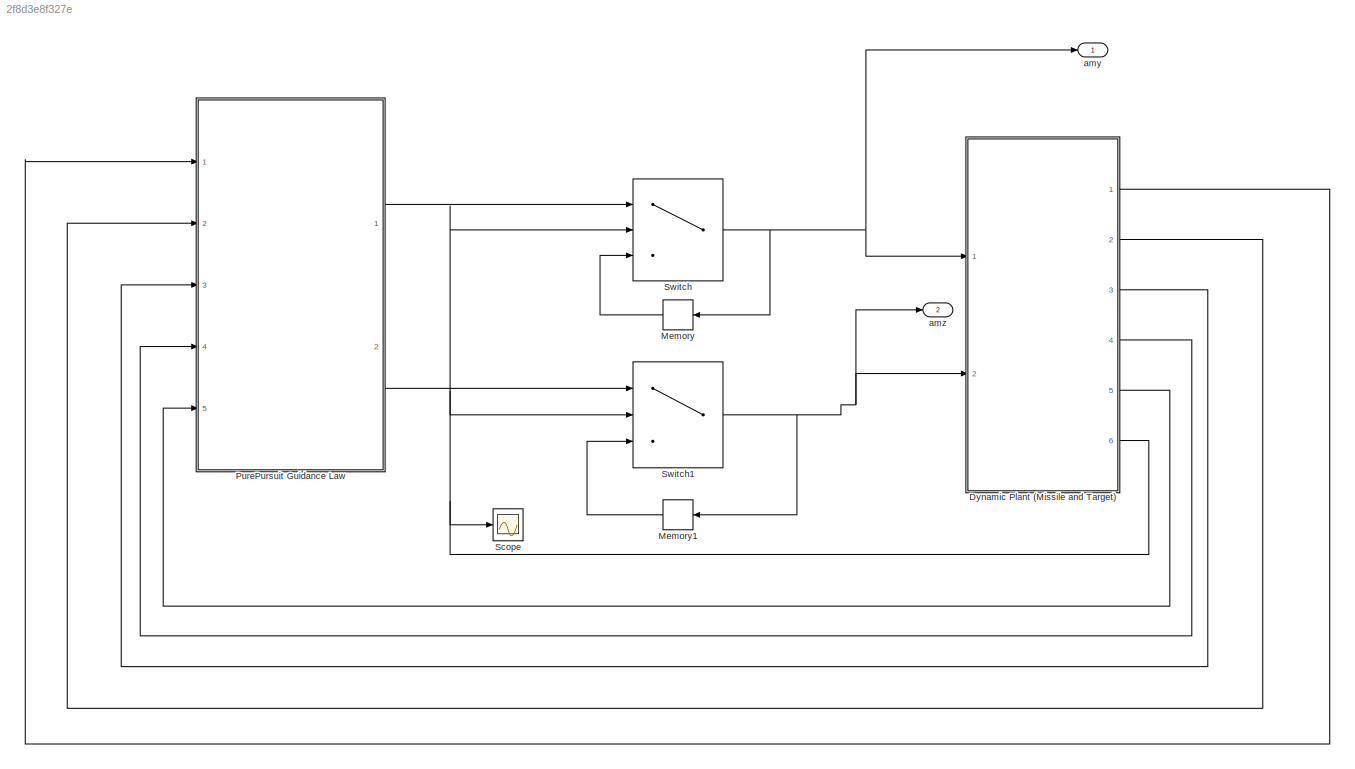
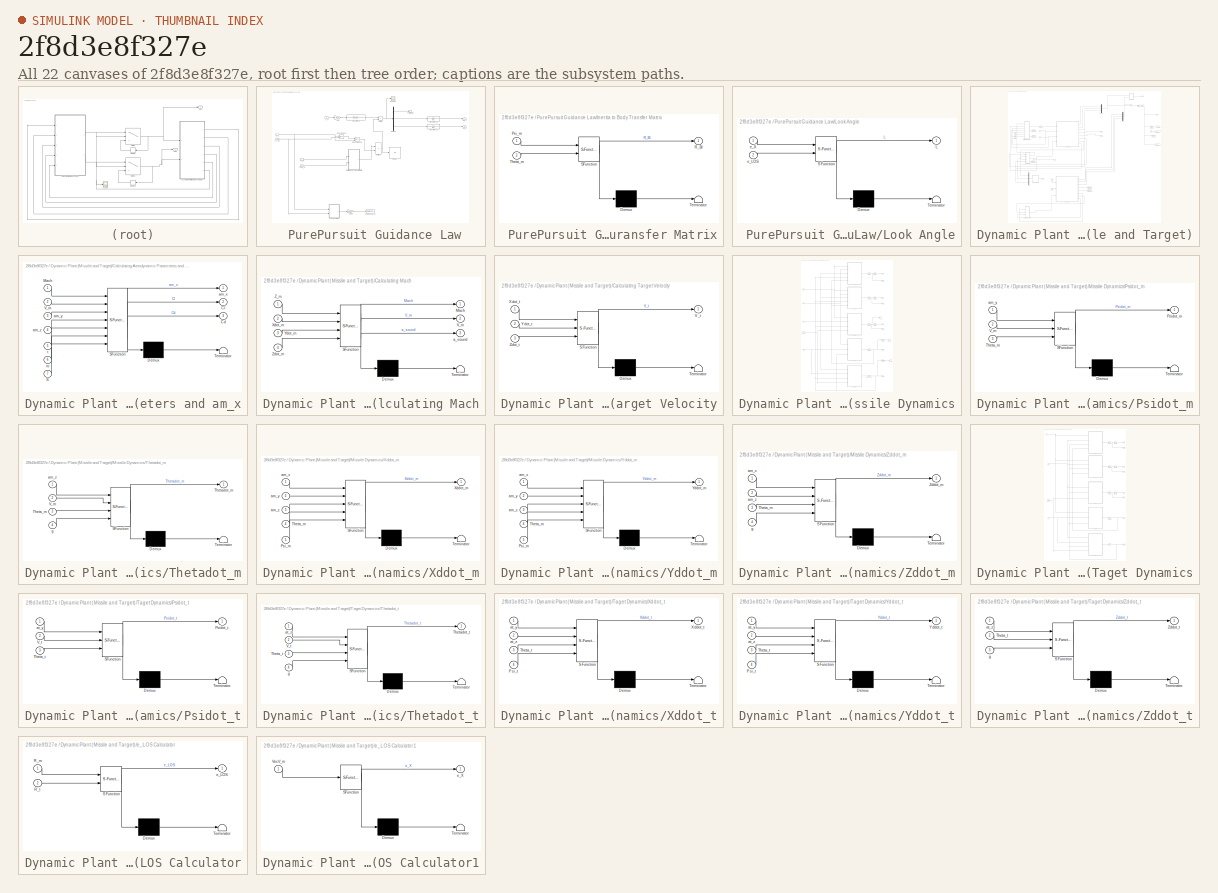
[diagram: thumbnail index - all 22 canvases of the model, root first then tree order]
MODEL slx_2f8d3e8f327e
KIND model
CONFIG AbsTol = auto
CONFIG EnableMultiTasking = off
CONFIG FixedStep = 0.0001
CONFIG InitFcn = Initial_Data
CONFIG MaxStep = auto
CONFIG MinStep = auto
CONFIG RelTol = 1e-3
CONFIG SampleTimeConstraint = Unconstrained
CONFIG Solver = FixedStepAuto
CONFIG SolverName = FixedStepAuto
CONFIG StartTime = 0.0
CONFIG StopTime = 10
BLOCK [SubSystem]  PurePursuit Guidance Law
  Ports = [5, 2]
  RequestExecContextInheritance = off
BLOCK [Reference]  PurePursuit Guidance Law/Cross Product  REF=vrlib/Utilities/Cross Product
  Ports = [2, 1]
  SourceBlock = vrlib/Utilities/Cross Product
  SourceProductBaseCode = VR
  SourceProductName = Simulink 3D Animation
  SourceType = Cross Product
BLOCK [Reference]  PurePursuit Guidance Law/Cross Product1  REF=vrlib/Utilities/Cross Product
  Ports = [2, 1]
  SourceBlock = vrlib/Utilities/Cross Product
  SourceProductBaseCode = VR
  SourceProductName = Simulink 3D Animation
  SourceType = Cross Product
BLOCK [Demux]  PurePursuit Guidance Law/Demux
  DisplayOption = bar
  Outputs = 3
  Ports = [1, 3]
BLOCK [Display]  PurePursuit Guidance Law/Display
  Decimation = 1
  Ports = [1]
BLOCK [Gain]  PurePursuit Guidance Law/Gain
  Gain = G_p
  OutDataTypeStr = Inherit: Inherit via internal rule
  ParamDataTypeStr = Inherit: Inherit via internal rule
  SaturateOnIntegerOverflow = off
BLOCK [Gain]  PurePursuit Guidance Law/Gain3
  Gain = 180/pi
  OutDataTypeStr = Inherit: Inherit via internal rule
  ParamDataTypeStr = Inherit: Inherit via internal rule
  SaturateOnIntegerOverflow = off
BLOCK [SubSystem]  PurePursuit Guidance Law/Inertia to Body Transfer Matrix
  ErrorFcn = Stateflow.Translate.translate
  PermitHierarchicalResolution = ExplicitOnly
  Ports = [2, 1]
  RequestExecContextInheritance = off
  SFBlockType = MATLAB Function
  TreatAsAtomicUnit = on
BLOCK [Demux]  PurePursuit Guidance Law/Inertia to Body Transfer Matrix/ Demux 
  Outputs = 1
  Ports = [1, 1]
BLOCK [S-Function]  PurePursuit Guidance Law/Inertia to Body Transfer Matrix/ SFunction 
  EnableBusSupport = on
  FunctionName = sf_sfun
  PortCounts = [2 2]
  Ports = [2, 2]
  SFcnIsStateOwnerBlock = off
  SFunctionDeploymentMode = off
  Tag = Stateflow S-Function Problem_1_Part_E 14
BLOCK [Terminator]  PurePursuit Guidance Law/Inertia to Body Transfer Matrix/ Terminator 
BLOCK [Inport]  PurePursuit Guidance Law/Inertia to Body Transfer Matrix/Psi_m
  IconDisplay = Port number
BLOCK [Outport]  PurePursuit Guidance Law/Inertia to Body Transfer Matrix/R_BI
  IconDisplay = Port number
BLOCK [Inport]  PurePursuit Guidance Law/Inertia to Body Transfer Matrix/Theta_m
  IconDisplay = Port number
  Port = 2
BLOCK [SubSystem]  PurePursuit Guidance Law/Look Angle
  ErrorFcn = Stateflow.Translate.translate
  PermitHierarchicalResolution = ExplicitOnly
  Ports = [2, 1]
  RequestExecContextInheritance = off
  SFBlockType = MATLAB Function
  TreatAsAtomicUnit = on
BLOCK [Demux]  PurePursuit Guidance Law/Look Angle/ Demux 
  Outputs = 1
  Ports = [1, 1]
BLOCK [S-Function]  PurePursuit Guidance Law/Look Angle/ SFunction 
  EnableBusSupport = on
  FunctionName = sf_sfun
  PortCounts = [2 2]
  Ports = [2, 2]
  SFcnIsStateOwnerBlock = off
  SFunctionDeploymentMode = off
  Tag = Stateflow S-Function Problem_1_Part_E 15
BLOCK [Terminator]  PurePursuit Guidance Law/Look Angle/ Terminator 
BLOCK [Outport]  PurePursuit Guidance Law/Look Angle/L
  IconDisplay = Port number
BLOCK [Inport]  PurePursuit Guidance Law/Look Angle/e_LOS
  IconDisplay = Port number
  Port = 2
BLOCK [Inport]  PurePursuit Guidance Law/Look Angle/e_X
  IconDisplay = Port number
BLOCK [Product]  PurePursuit Guidance Law/Multiply
  InputSameDT = off
  OutDataTypeStr = Inherit: Inherit via internal rule
  Ports = [2, 1]
  RndMeth = Floor
  SaturateOnIntegerOverflow = off
BLOCK [Product]  PurePursuit Guidance Law/Multiply1
  InputSameDT = off
  Multiplication = Matrix(*)
  OutDataTypeStr = Inherit: Inherit via internal rule
  Ports = [2, 1]
  RndMeth = Floor
  SaturateOnIntegerOverflow = off
BLOCK [Inport]  PurePursuit Guidance Law/Psi_m
  IconDisplay = Port number
  Port = 4
BLOCK [Scope]  PurePursuit Guidance Law/Scope2
  Floating = off
  NumInputPorts = 1
  Ports = [1]
  ScopeSpecificationString = Simulink.scopes.TimeScopeBlockCfg('CurrentConfiguration', extmgr.ConfigurationSet(extmgr.Configuration('Core','General UI',true),extmgr.Configuration('Core','Source UI',true),extmgr.Configuration('Sources','WiredSimulink',true,'DataLoggingVariableName','ScopeData5'),extmgr.Configuration('Visuals','Time Domain',true,'SerializedDisplays',{struct('MinYLimReal','1.65609','MaxYLimReal','7.40532','YLabe...<+1439ch>
BLOCK [Terminator]  PurePursuit Guidance Law/Terminator
BLOCK [Inport]  PurePursuit Guidance Law/Theta_m
  IconDisplay = Port number
  Port = 5
BLOCK [ToWorkspace]  PurePursuit Guidance Law/To Workspace1
  FixptAsFi = on
  MaxDataPoints = inf
  Ports = [1]
  SampleTime = -1
  Save2DSignal = 3-D array (concatenate along third dimension)
  SaveFormat = Timeseries
  VariableName = L
BLOCK [TransferFcn]  PurePursuit Guidance Law/Transfer Fcn
  Denominator = [T_2 1]
  Numerator = [T_1 1]
BLOCK [TransferFcn]  PurePursuit Guidance Law/Transfer Fcn1
  Denominator = [T 1]
BLOCK [TransferFcn]  PurePursuit Guidance Law/Transfer Fcn2
  Denominator = [T 1]
BLOCK [Inport]  PurePursuit Guidance Law/V_m
  IconDisplay = Port number
BLOCK [Outport]  PurePursuit Guidance Law/am_y
  IconDisplay = Port number
BLOCK [Outport]  PurePursuit Guidance Law/am_z
  IconDisplay = Port number
  Port = 2
BLOCK [Inport]  PurePursuit Guidance Law/e_LOS
  IconDisplay = Port number
  Port = 3
BLOCK [Inport]  PurePursuit Guidance Law/e_X
  IconDisplay = Port number
  Port = 2
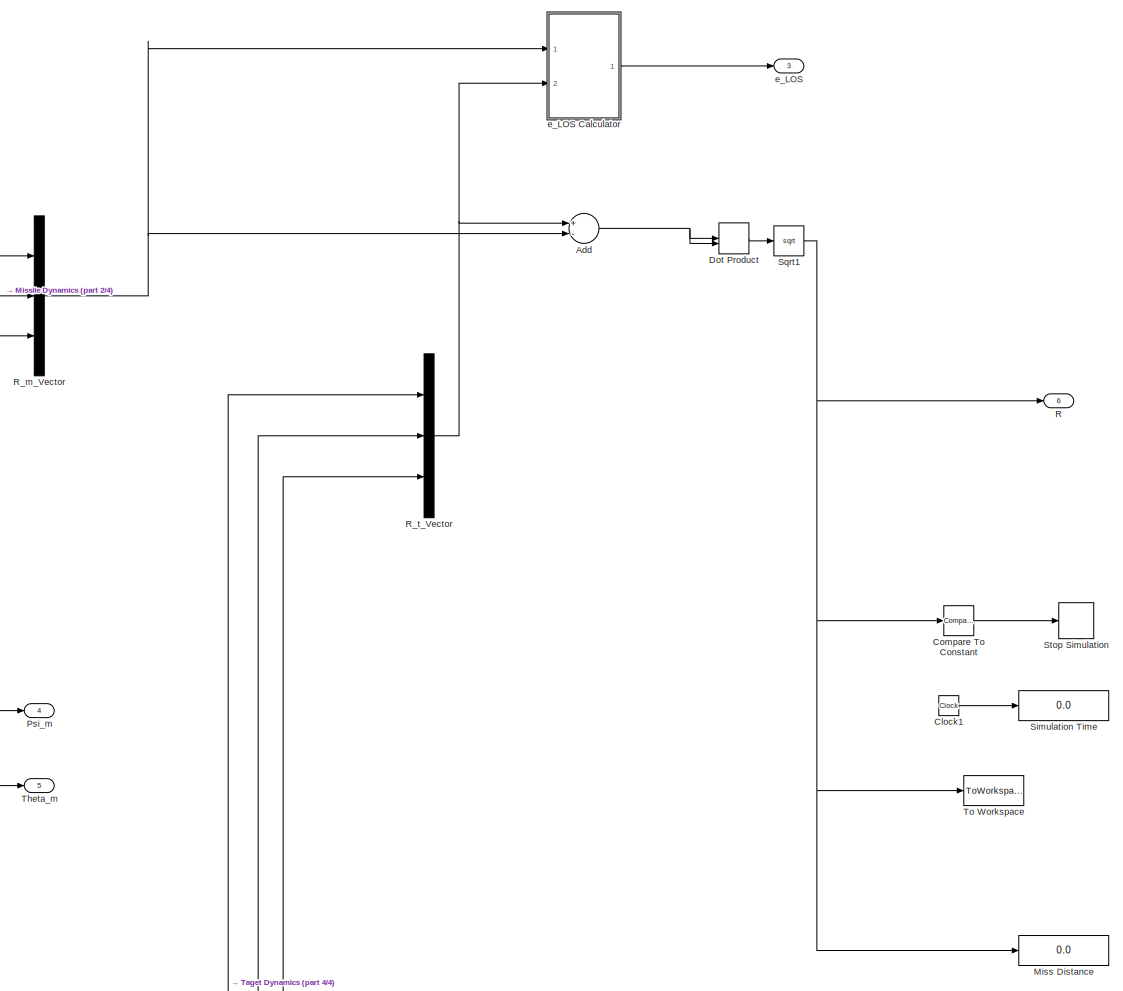
[diagram: Dynamic Plant (Missile and Target) - part 1/4, top right region]
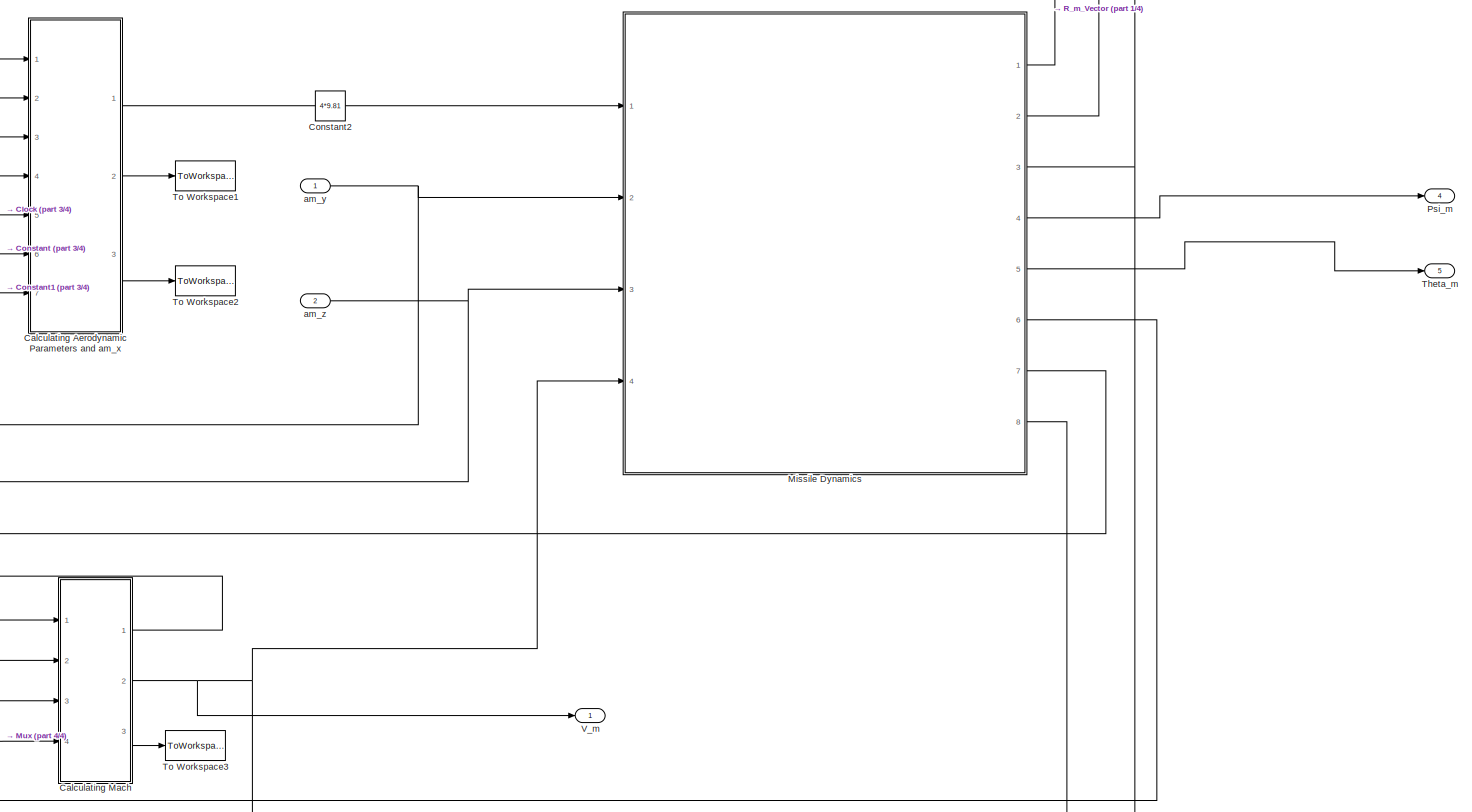
[diagram: Dynamic Plant (Missile and Target) - part 2/4, central region]
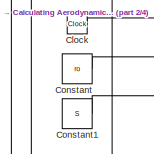
[diagram: Dynamic Plant (Missile and Target) - part 3/4, middle left region]
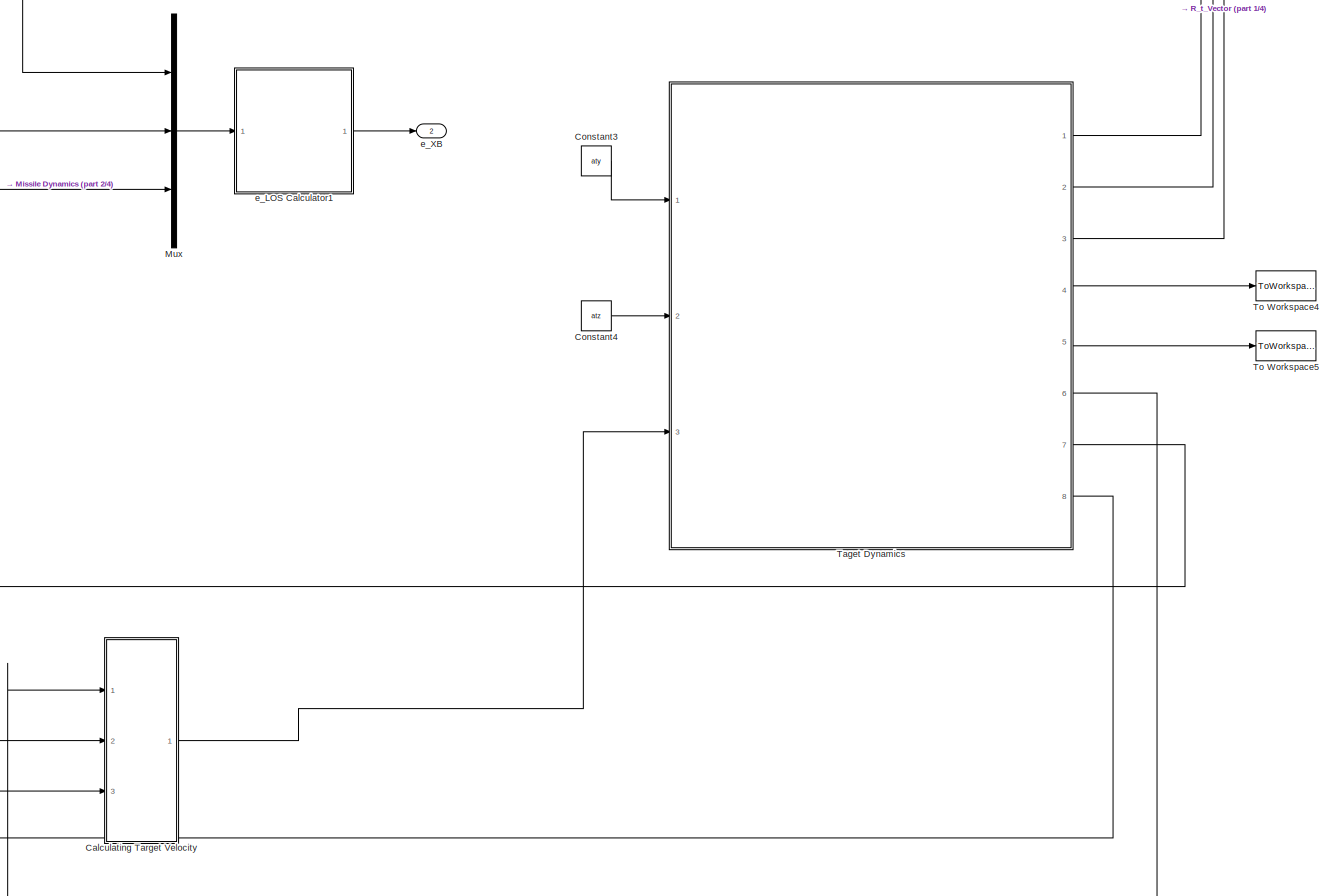
[diagram: Dynamic Plant (Missile and Target) - part 4/4, bottom left region]
BLOCK [SubSystem] Dynamic Plant (Missile and Target)
  Ports = [2, 6]
  RequestExecContextInheritance = off
BLOCK [Sum] Dynamic Plant (Missile and Target)/Add
  InputSameDT = off
  Inputs = +-
  OutDataTypeStr = Inherit: Inherit via internal rule
  Ports = [2, 1]
  SaturateOnIntegerOverflow = off
BLOCK [SubSystem] Dynamic Plant (Missile and Target)/Calculating Aerodynamic Parameters and am_x
  ErrorFcn = Stateflow.Translate.translate
  PermitHierarchicalResolution = ExplicitOnly
  Ports = [7, 3]
  RequestExecContextInheritance = off
  SFBlockType = MATLAB Function
  TreatAsAtomicUnit = on
BLOCK [Demux] Dynamic Plant (Missile and Target)/Calculating Aerodynamic Parameters and am_x/ Demux 
  Outputs = 1
  Ports = [1, 1]
BLOCK [S-Function] Dynamic Plant (Missile and Target)/Calculating Aerodynamic Parameters and am_x/ SFunction 
  EnableBusSupport = on
  FunctionName = sf_sfun
  PortCounts = [7 4]
  Ports = [7, 4]
  SFcnIsStateOwnerBlock = off
  SFunctionDeploymentMode = off
  Tag = Stateflow S-Function Problem_1_Part_E 2
BLOCK [Terminator] Dynamic Plant (Missile and Target)/Calculating Aerodynamic Parameters and am_x/ Terminator 
BLOCK [Outport] Dynamic Plant (Missile and Target)/Calculating Aerodynamic Parameters and am_x/Cd
  IconDisplay = Port number
  Port = 3
BLOCK [Outport] Dynamic Plant (Missile and Target)/Calculating Aerodynamic Parameters and am_x/Cl
  IconDisplay = Port number
  Port = 2
BLOCK [Inport] Dynamic Plant (Missile and Target)/Calculating Aerodynamic Parameters and am_x/Mach
  IconDisplay = Port number
BLOCK [Inport] Dynamic Plant (Missile and Target)/Calculating Aerodynamic Parameters and am_x/S
  IconDisplay = Port number
  Port = 7
BLOCK [Inport] Dynamic Plant (Missile and Target)/Calculating Aerodynamic Parameters and am_x/V_m
  IconDisplay = Port number
  Port = 2
BLOCK [Outport] Dynamic Plant (Missile and Target)/Calculating Aerodynamic Parameters and am_x/am_x
  IconDisplay = Port number
BLOCK [Inport] Dynamic Plant (Missile and Target)/Calculating Aerodynamic Parameters and am_x/am_y
  IconDisplay = Port number
  Port = 3
BLOCK [Inport] Dynamic Plant (Missile and Target)/Calculating Aerodynamic Parameters and am_x/am_z
  IconDisplay = Port number
  Port = 4
BLOCK [Inport] Dynamic Plant (Missile and Target)/Calculating Aerodynamic Parameters and am_x/ro
  IconDisplay = Port number
  Port = 6
BLOCK [Inport] Dynamic Plant (Missile and Target)/Calculating Aerodynamic Parameters and am_x/t
  IconDisplay = Port number
  Port = 5
BLOCK [SubSystem] Dynamic Plant (Missile and Target)/Calculating Mach
  ErrorFcn = Stateflow.Translate.translate
  PermitHierarchicalResolution = ExplicitOnly
  Ports = [4, 3]
  RequestExecContextInheritance = off
  SFBlockType = MATLAB Function
  TreatAsAtomicUnit = on
BLOCK [Demux] Dynamic Plant (Missile and Target)/Calculating Mach/ Demux 
  Outputs = 1
  Ports = [1, 1]
BLOCK [S-Function] Dynamic Plant (Missile and Target)/Calculating Mach/ SFunction 
  EnableBusSupport = on
  FunctionName = sf_sfun
  PortCounts = [4 4]
  Ports = [4, 4]
  SFcnIsStateOwnerBlock = off
  SFunctionDeploymentMode = off
  Tag = Stateflow S-Function Problem_1_Part_E 1
BLOCK [Terminator] Dynamic Plant (Missile and Target)/Calculating Mach/ Terminator 
BLOCK [Outport] Dynamic Plant (Missile and Target)/Calculating Mach/Mach
  IconDisplay = Port number
BLOCK [Outport] Dynamic Plant (Missile and Target)/Calculating Mach/V_m
  IconDisplay = Port number
  Port = 2
BLOCK [Inport] Dynamic Plant (Missile and Target)/Calculating Mach/Xdot_m
  IconDisplay = Port number
  Port = 2
BLOCK [Inport] Dynamic Plant (Missile and Target)/Calculating Mach/Ydot_m
  IconDisplay = Port number
  Port = 3
BLOCK [Inport] Dynamic Plant (Missile and Target)/Calculating Mach/Z_m
  IconDisplay = Port number
BLOCK [Inport] Dynamic Plant (Missile and Target)/Calculating Mach/Zdot_m
  IconDisplay = Port number
  Port = 4
BLOCK [Outport] Dynamic Plant (Missile and Target)/Calculating Mach/a_sound
  IconDisplay = Port number
  Port = 3
BLOCK [SubSystem] Dynamic Plant (Missile and Target)/Calculating Target Velocity
  ErrorFcn = Stateflow.Translate.translate
  PermitHierarchicalResolution = ExplicitOnly
  Ports = [3, 1]
  RequestExecContextInheritance = off
  SFBlockType = MATLAB Function
  TreatAsAtomicUnit = on
BLOCK [Demux] Dynamic Plant (Missile and Target)/Calculating Target Velocity/ Demux 
  Outputs = 1
  Ports = [1, 1]
BLOCK [S-Function] Dynamic Plant (Missile and Target)/Calculating Target Velocity/ SFunction 
  EnableBusSupport = on
  FunctionName = sf_sfun
  PortCounts = [3 2]
  Ports = [3, 2]
  SFcnIsStateOwnerBlock = off
  SFunctionDeploymentMode = off
  Tag = Stateflow S-Function Problem_1_Part_E 4
BLOCK [Terminator] Dynamic Plant (Missile and Target)/Calculating Target Velocity/ Terminator 
BLOCK [Outport] Dynamic Plant (Missile and Target)/Calculating Target Velocity/V_t
  IconDisplay = Port number
BLOCK [Inport] Dynamic Plant (Missile and Target)/Calculating Target Velocity/Xdot_t
  IconDisplay = Port number
BLOCK [Inport] Dynamic Plant (Missile and Target)/Calculating Target Velocity/Ydot_t
  IconDisplay = Port number
  Port = 2
BLOCK [Inport] Dynamic Plant (Missile and Target)/Calculating Target Velocity/Zdot_t
  IconDisplay = Port number
  Port = 3
BLOCK [Clock] Dynamic Plant (Missile and Target)/Clock
BLOCK [Clock] Dynamic Plant (Missile and Target)/Clock1
BLOCK [Reference] Dynamic Plant (Missile and Target)/Compare To Constant  REF=simulink/Logic and Bit
Operations/Compare
To Constant
  Ports = [1, 1]
  SourceBlock = simulink/Logic and Bit\nOperations/Compare\nTo Constant
  SourceProductBaseCode = SL
  SourceProductName = Simulink
  SourceType = Compare To Constant
BLOCK [Constant] Dynamic Plant (Missile and Target)/Constant
  Value = ro
BLOCK [Constant] Dynamic Plant (Missile and Target)/Constant1
  Value = S
BLOCK [Constant] Dynamic Plant (Missile and Target)/Constant2
  Commented = on
  Value = 4*9.81
BLOCK [Constant] Dynamic Plant (Missile and Target)/Constant3
  Value = aty
BLOCK [Constant] Dynamic Plant (Missile and Target)/Constant4
  Value = atz
BLOCK [DotProduct] Dynamic Plant (Missile and Target)/Dot Product
  OutDataTypeStr = Inherit: Inherit via internal rule
BLOCK [Display] Dynamic Plant (Missile and Target)/Miss Distance
  Decimation = 1
  Ports = [1]
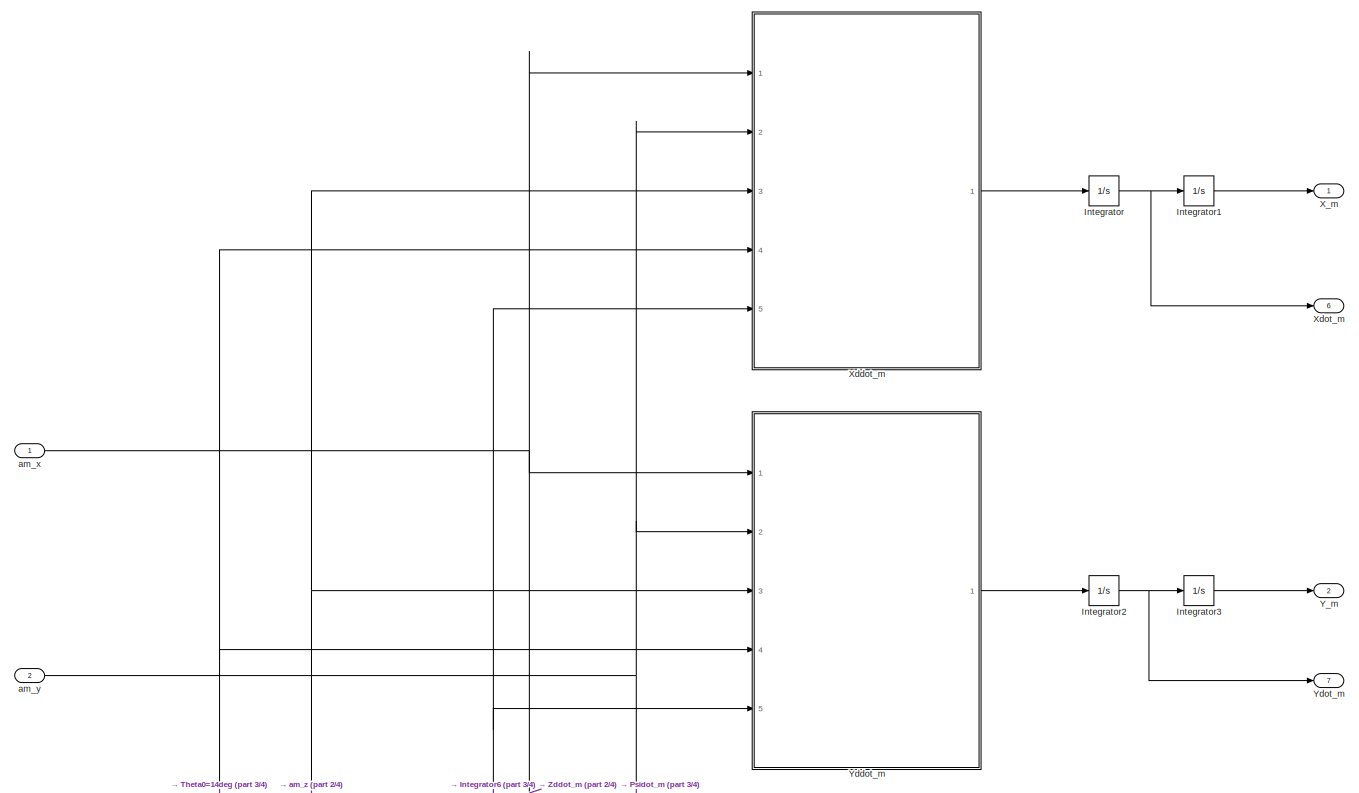
[diagram: Dynamic Plant (Missile and Target)/Missile Dynamics - part 1/4, full width, top band]
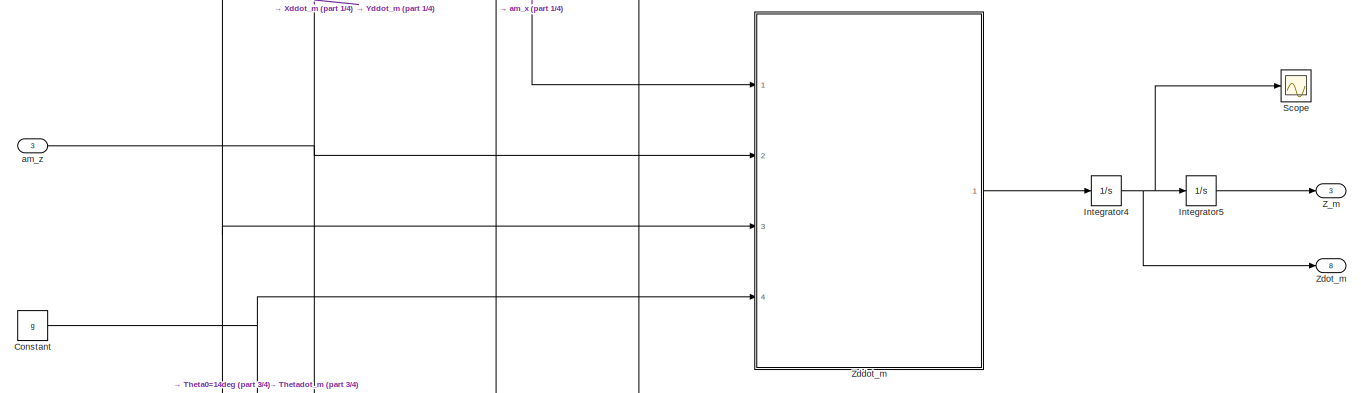
[diagram: Dynamic Plant (Missile and Target)/Missile Dynamics - part 2/4, full width, middle band]
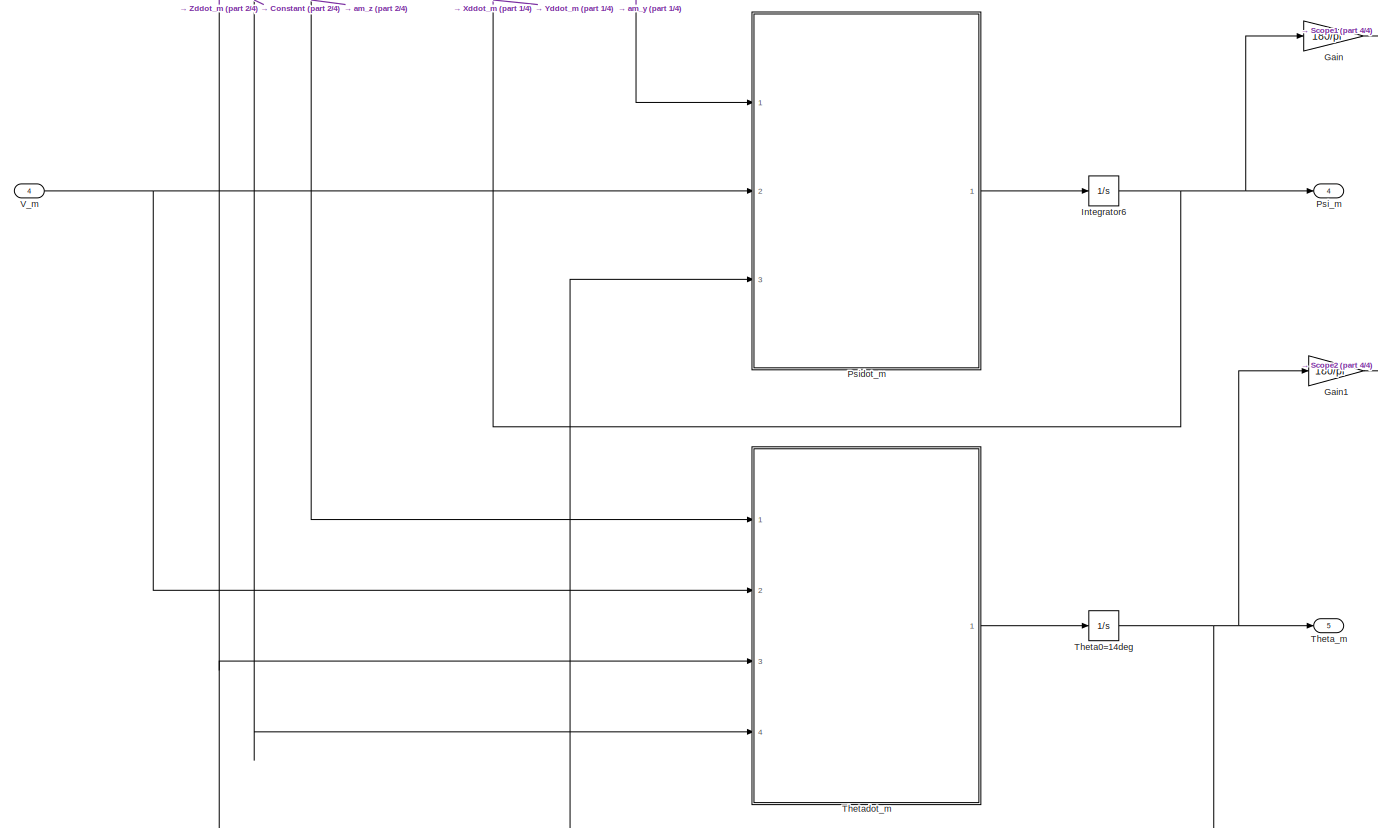
[diagram: Dynamic Plant (Missile and Target)/Missile Dynamics - part 3/4, full width, bottom band]
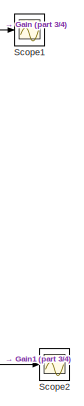
[diagram: Dynamic Plant (Missile and Target)/Missile Dynamics - part 4/4, bottom right region]
BLOCK [SubSystem] Dynamic Plant (Missile and Target)/Missile Dynamics
  Ports = [4, 8]
  RequestExecContextInheritance = off
BLOCK [Constant] Dynamic Plant (Missile and Target)/Missile Dynamics/Constant
  Value = g
BLOCK [Gain] Dynamic Plant (Missile and Target)/Missile Dynamics/Gain
  Gain = 180/pi
  OutDataTypeStr = Inherit: Inherit via internal rule
  ParamDataTypeStr = Inherit: Inherit via internal rule
  SaturateOnIntegerOverflow = off
BLOCK [Gain] Dynamic Plant (Missile and Target)/Missile Dynamics/Gain1
  Gain = 180/pi
  OutDataTypeStr = Inherit: Inherit via internal rule
  ParamDataTypeStr = Inherit: Inherit via internal rule
  SaturateOnIntegerOverflow = off
BLOCK [Integrator] Dynamic Plant (Missile and Target)/Missile Dynamics/Integrator
  InitialCondition = V_m0I(1)
  Ports = [1, 1]
BLOCK [Integrator] Dynamic Plant (Missile and Target)/Missile Dynamics/Integrator1
  InitialCondition = 0.001
  Ports = [1, 1]
BLOCK [Integrator] Dynamic Plant (Missile and Target)/Missile Dynamics/Integrator2
  InitialCondition = V_m0I(2)
  Ports = [1, 1]
BLOCK [Integrator] Dynamic Plant (Missile and Target)/Missile Dynamics/Integrator3
  Ports = [1, 1]
BLOCK [Integrator] Dynamic Plant (Missile and Target)/Missile Dynamics/Integrator4
  InitialCondition = V_m0I(3)
  Ports = [1, 1]
BLOCK [Integrator] Dynamic Plant (Missile and Target)/Missile Dynamics/Integrator5
  Ports = [1, 1]
BLOCK [Integrator] Dynamic Plant (Missile and Target)/Missile Dynamics/Integrator6
  InitialCondition = Psi_m0
  Ports = [1, 1]
BLOCK [Outport] Dynamic Plant (Missile and Target)/Missile Dynamics/Psi_m
  IconDisplay = Port number
  Port = 4
BLOCK [SubSystem] Dynamic Plant (Missile and Target)/Missile Dynamics/Psidot_m
  ErrorFcn = Stateflow.Translate.translate
  PermitHierarchicalResolution = ExplicitOnly
  Ports = [3, 1]
  RequestExecContextInheritance = off
  SFBlockType = MATLAB Function
  TreatAsAtomicUnit = on
BLOCK [Demux] Dynamic Plant (Missile and Target)/Missile Dynamics/Psidot_m/ Demux 
  Outputs = 1
  Ports = [1, 1]
BLOCK [S-Function] Dynamic Plant (Missile and Target)/Missile Dynamics/Psidot_m/ SFunction 
  EnableBusSupport = on
  FunctionName = sf_sfun
  PortCounts = [3 2]
  Ports = [3, 2]
  SFcnIsStateOwnerBlock = off
  SFunctionDeploymentMode = off
  Tag = Stateflow S-Function Problem_1_Part_E 7
BLOCK [Terminator] Dynamic Plant (Missile and Target)/Missile Dynamics/Psidot_m/ Terminator 
BLOCK [Outport] Dynamic Plant (Missile and Target)/Missile Dynamics/Psidot_m/Psidot_m
  IconDisplay = Port number
BLOCK [Inport] Dynamic Plant (Missile and Target)/Missile Dynamics/Psidot_m/Theta_m
  IconDisplay = Port number
  Port = 3
BLOCK [Inport] Dynamic Plant (Missile and Target)/Missile Dynamics/Psidot_m/V_m
  IconDisplay = Port number
  Port = 2
BLOCK [Inport] Dynamic Plant (Missile and Target)/Missile Dynamics/Psidot_m/am_y
  IconDisplay = Port number
BLOCK [Scope] Dynamic Plant (Missile and Target)/Missile Dynamics/Scope
  Floating = off
  NumInputPorts = 1
  Ports = [1]
  ScopeSpecificationString = Simulink.scopes.TimeScopeBlockCfg('CurrentConfiguration', extmgr.ConfigurationSet(extmgr.Configuration('Core','General UI',true),extmgr.Configuration('Core','Source UI',true),extmgr.Configuration('Sources','WiredSimulink',true,'DataLoggingVariableName','ScopeData1'),extmgr.Configuration('Visuals','Time Domain',true,'SerializedDisplays',{struct('MinYLimReal','21.80674','MaxYLimReal','436.10955','YL...<+1380ch>
BLOCK [Scope] Dynamic Plant (Missile and Target)/Missile Dynamics/Scope1
  Floating = off
  NumInputPorts = 1
  Ports = [1]
  ScopeSpecificationString = Simulink.scopes.TimeScopeBlockCfg('CurrentConfiguration', extmgr.ConfigurationSet(extmgr.Configuration('Core','General UI',true),extmgr.Configuration('Core','Source UI',true),extmgr.Configuration('Sources','WiredSimulink',true,'DataLoggingVariableName','ScopeData1'),extmgr.Configuration('Visuals','Time Domain',true,'SerializedDisplays',{struct('MinYLimReal','-956.56501','MaxYLimReal','465.73505','...<+1377ch>
BLOCK [Scope] Dynamic Plant (Missile and Target)/Missile Dynamics/Scope2
  Floating = off
  NumInputPorts = 1
  Ports = [1]
  ScopeSpecificationString = Simulink.scopes.TimeScopeBlockCfg('CurrentConfiguration', extmgr.ConfigurationSet(extmgr.Configuration('Core','General UI',true),extmgr.Configuration('Core','Source UI',true),extmgr.Configuration('Sources','WiredSimulink',true,'DataLoggingVariableName','ScopeData2'),extmgr.Configuration('Visuals','Time Domain',true,'SerializedDisplays',{struct('MinYLimReal','-117.31249','MaxYLimReal','39.70139','Y...<+1376ch>
BLOCK [Integrator] Dynamic Plant (Missile and Target)/Missile Dynamics/Theta0=14deg
  InitialCondition = Theta_m0
  Ports = [1, 1]
BLOCK [Outport] Dynamic Plant (Missile and Target)/Missile Dynamics/Theta_m
  IconDisplay = Port number
  Port = 5
BLOCK [SubSystem] Dynamic Plant (Missile and Target)/Missile Dynamics/Thetadot_m
  ErrorFcn = Stateflow.Translate.translate
  PermitHierarchicalResolution = ExplicitOnly
  Ports = [4, 1]
  RequestExecContextInheritance = off
  SFBlockType = MATLAB Function
  TreatAsAtomicUnit = on
BLOCK [Demux] Dynamic Plant (Missile and Target)/Missile Dynamics/Thetadot_m/ Demux 
  Outputs = 1
  Ports = [1, 1]
BLOCK [S-Function] Dynamic Plant (Missile and Target)/Missile Dynamics/Thetadot_m/ SFunction 
  EnableBusSupport = on
  FunctionName = sf_sfun
  PortCounts = [4 2]
  Ports = [4, 2]
  SFcnIsStateOwnerBlock = off
  SFunctionDeploymentMode = off
  Tag = Stateflow S-Function Problem_1_Part_E 8
BLOCK [Terminator] Dynamic Plant (Missile and Target)/Missile Dynamics/Thetadot_m/ Terminator 
BLOCK [Inport] Dynamic Plant (Missile and Target)/Missile Dynamics/Thetadot_m/Theta_m
  IconDisplay = Port number
  Port = 3
BLOCK [Outport] Dynamic Plant (Missile and Target)/Missile Dynamics/Thetadot_m/Thetadot_m
  IconDisplay = Port number
BLOCK [Inport] Dynamic Plant (Missile and Target)/Missile Dynamics/Thetadot_m/V_m
  IconDisplay = Port number
  Port = 2
BLOCK [Inport] Dynamic Plant (Missile and Target)/Missile Dynamics/Thetadot_m/am_z
  IconDisplay = Port number
BLOCK [Inport] Dynamic Plant (Missile and Target)/Missile Dynamics/Thetadot_m/g
  IconDisplay = Port number
  Port = 4
BLOCK [Inport] Dynamic Plant (Missile and Target)/Missile Dynamics/V_m
  IconDisplay = Port number
  Port = 4
BLOCK [Outport] Dynamic Plant (Missile and Target)/Missile Dynamics/X_m
  IconDisplay = Port number
BLOCK [SubSystem] Dynamic Plant (Missile and Target)/Missile Dynamics/Xddot_m
  ErrorFcn = Stateflow.Translate.translate
  PermitHierarchicalResolution = ExplicitOnly
  Ports = [5, 1]
  RequestExecContextInheritance = off
  SFBlockType = MATLAB Function
  TreatAsAtomicUnit = on
BLOCK [Demux] Dynamic Plant (Missile and Target)/Missile Dynamics/Xddot_m/ Demux 
  Outputs = 1
  Ports = [1, 1]
BLOCK [S-Function] Dynamic Plant (Missile and Target)/Missile Dynamics/Xddot_m/ SFunction 
  EnableBusSupport = on
  FunctionName = sf_sfun
  PortCounts = [5 2]
  Ports = [5, 2]
  SFcnIsStateOwnerBlock = off
  SFunctionDeploymentMode = off
  Tag = Stateflow S-Function Problem_1_Part_E 3
BLOCK [Terminator] Dynamic Plant (Missile and Target)/Missile Dynamics/Xddot_m/ Terminator 
BLOCK [Inport] Dynamic Plant (Missile and Target)/Missile Dynamics/Xddot_m/Psi_m
  IconDisplay = Port number
  Port = 5
BLOCK [Inport] Dynamic Plant (Missile and Target)/Missile Dynamics/Xddot_m/Theta_m
  IconDisplay = Port number
  Port = 4
BLOCK [Outport] Dynamic Plant (Missile and Target)/Missile Dynamics/Xddot_m/Xddot_m
  IconDisplay = Port number
BLOCK [Inport] Dynamic Plant (Missile and Target)/Missile Dynamics/Xddot_m/am_x
  IconDisplay = Port number
BLOCK [Inport] Dynamic Plant (Missile and Target)/Missile Dynamics/Xddot_m/am_y
  IconDisplay = Port number
  Port = 2
BLOCK [Inport] Dynamic Plant (Missile and Target)/Missile Dynamics/Xddot_m/am_z
  IconDisplay = Port number
  Port = 3
BLOCK [Outport] Dynamic Plant (Missile and Target)/Missile Dynamics/Xdot_m
  IconDisplay = Port number
  Port = 6
BLOCK [Outport] Dynamic Plant (Missile and Target)/Missile Dynamics/Y_m
  IconDisplay = Port number
  Port = 2
BLOCK [SubSystem] Dynamic Plant (Missile and Target)/Missile Dynamics/Yddot_m
  ErrorFcn = Stateflow.Translate.translate
  PermitHierarchicalResolution = ExplicitOnly
  Ports = [5, 1]
  RequestExecContextInheritance = off
  SFBlockType = MATLAB Function
  TreatAsAtomicUnit = on
BLOCK [Demux] Dynamic Plant (Missile and Target)/Missile Dynamics/Yddot_m/ Demux 
  Outputs = 1
  Ports = [1, 1]
BLOCK [S-Function] Dynamic Plant (Missile and Target)/Missile Dynamics/Yddot_m/ SFunction 
  EnableBusSupport = on
  FunctionName = sf_sfun
  PortCounts = [5 2]
  Ports = [5, 2]
  SFcnIsStateOwnerBlock = off
  SFunctionDeploymentMode = off
  Tag = Stateflow S-Function Problem_1_Part_E 5
BLOCK [Terminator] Dynamic Plant (Missile and Target)/Missile Dynamics/Yddot_m/ Terminator 
BLOCK [Inport] Dynamic Plant (Missile and Target)/Missile Dynamics/Yddot_m/Psi_m
  IconDisplay = Port number
  Port = 5
BLOCK [Inport] Dynamic Plant (Missile and Target)/Missile Dynamics/Yddot_m/Theta_m
  IconDisplay = Port number
  Port = 4
BLOCK [Outport] Dynamic Plant (Missile and Target)/Missile Dynamics/Yddot_m/Yddot_m
  IconDisplay = Port number
BLOCK [Inport] Dynamic Plant (Missile and Target)/Missile Dynamics/Yddot_m/am_x
  IconDisplay = Port number
BLOCK [Inport] Dynamic Plant (Missile and Target)/Missile Dynamics/Yddot_m/am_y
  IconDisplay = Port number
  Port = 2
BLOCK [Inport] Dynamic Plant (Missile and Target)/Missile Dynamics/Yddot_m/am_z
  IconDisplay = Port number
  Port = 3
BLOCK [Outport] Dynamic Plant (Missile and Target)/Missile Dynamics/Ydot_m
  IconDisplay = Port number
  Port = 7
BLOCK [Outport] Dynamic Plant (Missile and Target)/Missile Dynamics/Z_m
  IconDisplay = Port number
  Port = 3
BLOCK [SubSystem] Dynamic Plant (Missile and Target)/Missile Dynamics/Zddot_m
  ErrorFcn = Stateflow.Translate.translate
  PermitHierarchicalResolution = ExplicitOnly
  Ports = [4, 1]
  RequestExecContextInheritance = off
  SFBlockType = MATLAB Function
  TreatAsAtomicUnit = on
BLOCK [Demux] Dynamic Plant (Missile and Target)/Missile Dynamics/Zddot_m/ Demux 
  Outputs = 1
  Ports = [1, 1]
BLOCK [S-Function] Dynamic Plant (Missile and Target)/Missile Dynamics/Zddot_m/ SFunction 
  EnableBusSupport = on
  FunctionName = sf_sfun
  PortCounts = [4 2]
  Ports = [4, 2]
  SFcnIsStateOwnerBlock = off
  SFunctionDeploymentMode = off
  Tag = Stateflow S-Function Problem_1_Part_E 6
BLOCK [Terminator] Dynamic Plant (Missile and Target)/Missile Dynamics/Zddot_m/ Terminator 
BLOCK [Inport] Dynamic Plant (Missile and Target)/Missile Dynamics/Zddot_m/Theta_m
  IconDisplay = Port number
  Port = 3
BLOCK [Outport] Dynamic Plant (Missile and Target)/Missile Dynamics/Zddot_m/Zddot_m
  IconDisplay = Port number
BLOCK [Inport] Dynamic Plant (Missile and Target)/Missile Dynamics/Zddot_m/am_x
  IconDisplay = Port number
BLOCK [Inport] Dynamic Plant (Missile and Target)/Missile Dynamics/Zddot_m/am_z
  IconDisplay = Port number
  Port = 2
BLOCK [Inport] Dynamic Plant (Missile and Target)/Missile Dynamics/Zddot_m/g
  IconDisplay = Port number
  Port = 4
BLOCK [Outport] Dynamic Plant (Missile and Target)/Missile Dynamics/Zdot_m
  IconDisplay = Port number
  Port = 8
BLOCK [Inport] Dynamic Plant (Missile and Target)/Missile Dynamics/am_x
  IconDisplay = Port number
BLOCK [Inport] Dynamic Plant (Missile and Target)/Missile Dynamics/am_y
  IconDisplay = Port number
  Port = 2
BLOCK [Inport] Dynamic Plant (Missile and Target)/Missile Dynamics/am_z
  IconDisplay = Port number
  Port = 3
BLOCK [Mux] Dynamic Plant (Missile and Target)/Mux
  DisplayOption = bar
  Inputs = 3
  Ports = [3, 1]
BLOCK [Outport] Dynamic Plant (Missile and Target)/Psi_m
  IconDisplay = Port number
  Port = 4
BLOCK [Outport] Dynamic Plant (Missile and Target)/R
  IconDisplay = Port number
  Port = 6
BLOCK [Mux] Dynamic Plant (Missile and Target)/R_m_Vector
  DisplayOption = bar
  Inputs = 3
  Ports = [3, 1]
BLOCK [Mux] Dynamic Plant (Missile and Target)/R_t_Vector
  DisplayOption = bar
  Inputs = 3
  Ports = [3, 1]
BLOCK [Display] Dynamic Plant (Missile and Target)/Simulation Time
  Decimation = 1
  Format = long
  Ports = [1]
BLOCK [Sqrt] Dynamic Plant (Missile and Target)/Sqrt1
BLOCK [Stop] Dynamic Plant (Missile and Target)/Stop Simulation
BLOCK [SubSystem] Dynamic Plant (Missile and Target)/Taget Dynamics
  Ports = [3, 8]
  RequestExecContextInheritance = off
BLOCK [Integrator] Dynamic Plant (Missile and Target)/Taget Dynamics/ 
  Ports = [1, 1]
BLOCK [Constant] Dynamic Plant (Missile and Target)/Taget Dynamics/Constant
  Value = 9.81
BLOCK [Integrator] Dynamic Plant (Missile and Target)/Taget Dynamics/Integrator
  InitialCondition = -300
  Ports = [1, 1]
BLOCK [Integrator] Dynamic Plant (Missile and Target)/Taget Dynamics/Integrator1
  InitialCondition = 12000
  Ports = [1, 1]
BLOCK [Integrator] Dynamic Plant (Missile and Target)/Taget Dynamics/Integrator2
  Ports = [1, 1]
BLOCK [Integrator] Dynamic Plant (Missile and Target)/Taget Dynamics/Integrator3
  Ports = [1, 1]
BLOCK [Integrator] Dynamic Plant (Missile and Target)/Taget Dynamics/Integrator4
  Ports = [1, 1]
BLOCK [Integrator] Dynamic Plant (Missile and Target)/Taget Dynamics/Integrator5
  InitialCondition = 3000
  Ports = [1, 1]
BLOCK [Integrator] Dynamic Plant (Missile and Target)/Taget Dynamics/Integrator6
  InitialCondition = 3.14159
  Ports = [1, 1]
BLOCK [Outport] Dynamic Plant (Missile and Target)/Taget Dynamics/Psi_t
  IconDisplay = Port number
  Port = 4
BLOCK [SubSystem] Dynamic Plant (Missile and Target)/Taget Dynamics/Psidot_t
  ErrorFcn = Stateflow.Translate.translate
  PermitHierarchicalResolution = ExplicitOnly
  Ports = [3, 1]
  RequestExecContextInheritance = off
  SFBlockType = MATLAB Function
  TreatAsAtomicUnit = on
BLOCK [Demux] Dynamic Plant (Missile and Target)/Taget Dynamics/Psidot_t/ Demux 
  Outputs = 1
  Ports = [1, 1]
BLOCK [S-Function] Dynamic Plant (Missile and Target)/Taget Dynamics/Psidot_t/ SFunction 
  EnableBusSupport = on
  FunctionName = sf_sfun
  PortCounts = [3 2]
  Ports = [3, 2]
  SFcnIsStateOwnerBlock = off
  SFunctionDeploymentMode = off
  Tag = Stateflow S-Function Problem_1_Part_E 9
BLOCK [Terminator] Dynamic Plant (Missile and Target)/Taget Dynamics/Psidot_t/ Terminator 
BLOCK [Outport] Dynamic Plant (Missile and Target)/Taget Dynamics/Psidot_t/Psidot_t
  IconDisplay = Port number
BLOCK [Inport] Dynamic Plant (Missile and Target)/Taget Dynamics/Psidot_t/Theta_t
  IconDisplay = Port number
  Port = 3
BLOCK [Inport] Dynamic Plant (Missile and Target)/Taget Dynamics/Psidot_t/V_t
  IconDisplay = Port number
  Port = 2
BLOCK [Inport] Dynamic Plant (Missile and Target)/Taget Dynamics/Psidot_t/at_y
  IconDisplay = Port number
BLOCK [Outport] Dynamic Plant (Missile and Target)/Taget Dynamics/Theta_t
  IconDisplay = Port number
  Port = 5
BLOCK [SubSystem] Dynamic Plant (Missile and Target)/Taget Dynamics/Thetadot_t
  ErrorFcn = Stateflow.Translate.translate
  PermitHierarchicalResolution = ExplicitOnly
  Ports = [4, 1]
  RequestExecContextInheritance = off
  SFBlockType = MATLAB Function
  TreatAsAtomicUnit = on
BLOCK [Demux] Dynamic Plant (Missile and Target)/Taget Dynamics/Thetadot_t/ Demux 
  Outputs = 1
  Ports = [1, 1]
BLOCK [S-Function] Dynamic Plant (Missile and Target)/Taget Dynamics/Thetadot_t/ SFunction 
  EnableBusSupport = on
  FunctionName = sf_sfun
  PortCounts = [4 2]
  Ports = [4, 2]
  SFcnIsStateOwnerBlock = off
  SFunctionDeploymentMode = off
  Tag = Stateflow S-Function Problem_1_Part_E 10
BLOCK [Terminator] Dynamic Plant (Missile and Target)/Taget Dynamics/Thetadot_t/ Terminator 
BLOCK [Inport] Dynamic Plant (Missile and Target)/Taget Dynamics/Thetadot_t/Theta_t
  IconDisplay = Port number
  Port = 3
BLOCK [Outport] Dynamic Plant (Missile and Target)/Taget Dynamics/Thetadot_t/Thetadot_t
  IconDisplay = Port number
BLOCK [Inport] Dynamic Plant (Missile and Target)/Taget Dynamics/Thetadot_t/V_t
  IconDisplay = Port number
  Port = 2
BLOCK [Inport] Dynamic Plant (Missile and Target)/Taget Dynamics/Thetadot_t/at_z
  IconDisplay = Port number
BLOCK [Inport] Dynamic Plant (Missile and Target)/Taget Dynamics/Thetadot_t/g
  IconDisplay = Port number
  Port = 4
BLOCK [Inport] Dynamic Plant (Missile and Target)/Taget Dynamics/V_t
  IconDisplay = Port number
  Port = 3
BLOCK [Outport] Dynamic Plant (Missile and Target)/Taget Dynamics/X_t
  IconDisplay = Port number
BLOCK [SubSystem] Dynamic Plant (Missile and Target)/Taget Dynamics/Xddot_t
  ErrorFcn = Stateflow.Translate.translate
  PermitHierarchicalResolution = ExplicitOnly
  Ports = [4, 1]
  RequestExecContextInheritance = off
  SFBlockType = MATLAB Function
  TreatAsAtomicUnit = on
BLOCK [Demux] Dynamic Plant (Missile and Target)/Taget Dynamics/Xddot_t/ Demux 
  Outputs = 1
  Ports = [1, 1]
BLOCK [S-Function] Dynamic Plant (Missile and Target)/Taget Dynamics/Xddot_t/ SFunction 
  EnableBusSupport = on
  FunctionName = sf_sfun
  PortCounts = [4 2]
  Ports = [4, 2]
  SFcnIsStateOwnerBlock = off
  SFunctionDeploymentMode = off
  Tag = Stateflow S-Function Problem_1_Part_E 11
BLOCK [Terminator] Dynamic Plant (Missile and Target)/Taget Dynamics/Xddot_t/ Terminator 
BLOCK [Inport] Dynamic Plant (Missile and Target)/Taget Dynamics/Xddot_t/Psi_t
  IconDisplay = Port number
  Port = 4
BLOCK [Inport] Dynamic Plant (Missile and Target)/Taget Dynamics/Xddot_t/Theta_t
  IconDisplay = Port number
  Port = 3
BLOCK [Outport] Dynamic Plant (Missile and Target)/Taget Dynamics/Xddot_t/Xddot_t
  IconDisplay = Port number
BLOCK [Inport] Dynamic Plant (Missile and Target)/Taget Dynamics/Xddot_t/at_y
  IconDisplay = Port number
BLOCK [Inport] Dynamic Plant (Missile and Target)/Taget Dynamics/Xddot_t/at_z
  IconDisplay = Port number
  Port = 2
BLOCK [Outport] Dynamic Plant (Missile and Target)/Taget Dynamics/Xdot_t
  IconDisplay = Port number
  Port = 6
BLOCK [Outport] Dynamic Plant (Missile and Target)/Taget Dynamics/Y_t
  IconDisplay = Port number
  Port = 2
BLOCK [SubSystem] Dynamic Plant (Missile and Target)/Taget Dynamics/Yddot_t
  ErrorFcn = Stateflow.Translate.translate
  PermitHierarchicalResolution = ExplicitOnly
  Ports = [4, 1]
  RequestExecContextInheritance = off
  SFBlockType = MATLAB Function
  TreatAsAtomicUnit = on
BLOCK [Demux] Dynamic Plant (Missile and Target)/Taget Dynamics/Yddot_t/ Demux 
  Outputs = 1
  Ports = [1, 1]
BLOCK [S-Function] Dynamic Plant (Missile and Target)/Taget Dynamics/Yddot_t/ SFunction 
  EnableBusSupport = on
  FunctionName = sf_sfun
  PortCounts = [4 2]
  Ports = [4, 2]
  SFcnIsStateOwnerBlock = off
  SFunctionDeploymentMode = off
  Tag = Stateflow S-Function Problem_1_Part_E 12
BLOCK [Terminator] Dynamic Plant (Missile and Target)/Taget Dynamics/Yddot_t/ Terminator 
BLOCK [Inport] Dynamic Plant (Missile and Target)/Taget Dynamics/Yddot_t/Psi_t
  IconDisplay = Port number
  Port = 4
BLOCK [Inport] Dynamic Plant (Missile and Target)/Taget Dynamics/Yddot_t/Theta_t
  IconDisplay = Port number
  Port = 3
BLOCK [Outport] Dynamic Plant (Missile and Target)/Taget Dynamics/Yddot_t/Yddot_t
  IconDisplay = Port number
BLOCK [Inport] Dynamic Plant (Missile and Target)/Taget Dynamics/Yddot_t/at_y
  IconDisplay = Port number
BLOCK [Inport] Dynamic Plant (Missile and Target)/Taget Dynamics/Yddot_t/at_z
  IconDisplay = Port number
  Port = 2
BLOCK [Outport] Dynamic Plant (Missile and Target)/Taget Dynamics/Ydot_t
  IconDisplay = Port number
  Port = 7
BLOCK [Outport] Dynamic Plant (Missile and Target)/Taget Dynamics/Z_t
  IconDisplay = Port number
  Port = 3
BLOCK [SubSystem] Dynamic Plant (Missile and Target)/Taget Dynamics/Zddot_t
  ErrorFcn = Stateflow.Translate.translate
  PermitHierarchicalResolution = ExplicitOnly
  Ports = [3, 1]
  RequestExecContextInheritance = off
  SFBlockType = MATLAB Function
  TreatAsAtomicUnit = on
BLOCK [Demux] Dynamic Plant (Missile and Target)/Taget Dynamics/Zddot_t/ Demux 
  Outputs = 1
  Ports = [1, 1]
BLOCK [S-Function] Dynamic Plant (Missile and Target)/Taget Dynamics/Zddot_t/ SFunction 
  EnableBusSupport = on
  FunctionName = sf_sfun
  PortCounts = [3 2]
  Ports = [3, 2]
  SFcnIsStateOwnerBlock = off
  SFunctionDeploymentMode = off
  Tag = Stateflow S-Function Problem_1_Part_E 13
BLOCK [Terminator] Dynamic Plant (Missile and Target)/Taget Dynamics/Zddot_t/ Terminator 
BLOCK [Inport] Dynamic Plant (Missile and Target)/Taget Dynamics/Zddot_t/Theta_t
  IconDisplay = Port number
  Port = 2
BLOCK [Outport] Dynamic Plant (Missile and Target)/Taget Dynamics/Zddot_t/Zddot_t
  IconDisplay = Port number
BLOCK [Inport] Dynamic Plant (Missile and Target)/Taget Dynamics/Zddot_t/at_z
  IconDisplay = Port number
BLOCK [Inport] Dynamic Plant (Missile and Target)/Taget Dynamics/Zddot_t/g
  IconDisplay = Port number
  Port = 3
BLOCK [Outport] Dynamic Plant (Missile and Target)/Taget Dynamics/Zdot_t
  IconDisplay = Port number
  Port = 8
BLOCK [Inport] Dynamic Plant (Missile and Target)/Taget Dynamics/at_y
  IconDisplay = Port number
BLOCK [Inport] Dynamic Plant (Missile and Target)/Taget Dynamics/at_z
  IconDisplay = Port number
  Port = 2
BLOCK [Outport] Dynamic Plant (Missile and Target)/Theta_m
  IconDisplay = Port number
  Port = 5
BLOCK [ToWorkspace] Dynamic Plant (Missile and Target)/To Workspace
  FixptAsFi = on
  MaxDataPoints = inf
  Ports = [1]
  SampleTime = -1
  Save2DSignal = 3-D array (concatenate along third dimension)
  VariableName = MD
BLOCK [ToWorkspace] Dynamic Plant (Missile and Target)/To Workspace1
  FixptAsFi = on
  MaxDataPoints = inf
  Ports = [1]
  SampleTime = -1
  Save2DSignal = 3-D array (concatenate along third dimension)
  SaveFormat = Timeseries
  VariableName = Cl
BLOCK [ToWorkspace] Dynamic Plant (Missile and Target)/To Workspace2
  FixptAsFi = on
  MaxDataPoints = inf
  Ports = [1]
  SampleTime = -1
  Save2DSignal = 3-D array (concatenate along third dimension)
  SaveFormat = Timeseries
  VariableName = Cd
BLOCK [ToWorkspace] Dynamic Plant (Missile and Target)/To Workspace3
  FixptAsFi = on
  MaxDataPoints = inf
  Ports = [1]
  SampleTime = -1
  Save2DSignal = 3-D array (concatenate along third dimension)
  SaveFormat = Timeseries
  VariableName = a_sound
BLOCK [ToWorkspace] Dynamic Plant (Missile and Target)/To Workspace4
  FixptAsFi = on
  MaxDataPoints = inf
  Ports = [1]
  SampleTime = -1
  Save2DSignal = 3-D array (concatenate along third dimension)
  SaveFormat = Timeseries
  VariableName = Psi_t
BLOCK [ToWorkspace] Dynamic Plant (Missile and Target)/To Workspace5
  FixptAsFi = on
  MaxDataPoints = inf
  Ports = [1]
  SampleTime = -1
  Save2DSignal = 3-D array (concatenate along third dimension)
  SaveFormat = Timeseries
  VariableName = Theta_t
BLOCK [Outport] Dynamic Plant (Missile and Target)/V_m
  IconDisplay = Port number
BLOCK [Inport] Dynamic Plant (Missile and Target)/am_y
  IconDisplay = Port number
BLOCK [Inport] Dynamic Plant (Missile and Target)/am_z
  IconDisplay = Port number
  Port = 2
BLOCK [Outport] Dynamic Plant (Missile and Target)/e_LOS
  IconDisplay = Port number
  Port = 3
BLOCK [SubSystem] Dynamic Plant (Missile and Target)/e_LOS Calculator
  ErrorFcn = Stateflow.Translate.translate
  PermitHierarchicalResolution = ExplicitOnly
  Ports = [2, 1]
  RequestExecContextInheritance = off
  SFBlockType = MATLAB Function
  TreatAsAtomicUnit = on
BLOCK [Demux] Dynamic Plant (Missile and Target)/e_LOS Calculator/ Demux 
  Outputs = 1
  Ports = [1, 1]
BLOCK [S-Function] Dynamic Plant (Missile and Target)/e_LOS Calculator/ SFunction 
  EnableBusSupport = on
  FunctionName = sf_sfun
  PortCounts = [2 2]
  Ports = [2, 2]
  SFcnIsStateOwnerBlock = off
  SFunctionDeploymentMode = off
  Tag = Stateflow S-Function Problem_1_Part_E 16
BLOCK [Terminator] Dynamic Plant (Missile and Target)/e_LOS Calculator/ Terminator 
BLOCK [Inport] Dynamic Plant (Missile and Target)/e_LOS Calculator/R_m
  IconDisplay = Port number
BLOCK [Inport] Dynamic Plant (Missile and Target)/e_LOS Calculator/R_t
  IconDisplay = Port number
  Port = 2
BLOCK [Outport] Dynamic Plant (Missile and Target)/e_LOS Calculator/e_LOS
  IconDisplay = Port number
BLOCK [SubSystem] Dynamic Plant (Missile and Target)/e_LOS Calculator1
  ErrorFcn = Stateflow.Translate.translate
  PermitHierarchicalResolution = ExplicitOnly
  Ports = [1, 1]
  RequestExecContextInheritance = off
  SFBlockType = MATLAB Function
  TreatAsAtomicUnit = on
BLOCK [Demux] Dynamic Plant (Missile and Target)/e_LOS Calculator1/ Demux 
  Outputs = 1
  Ports = [1, 1]
BLOCK [S-Function] Dynamic Plant (Missile and Target)/e_LOS Calculator1/ SFunction 
  EnableBusSupport = on
  FunctionName = sf_sfun
  PortCounts = [1 2]
  Ports = [1, 2]
  SFcnIsStateOwnerBlock = off
  SFunctionDeploymentMode = off
  Tag = Stateflow S-Function Problem_1_Part_E 18
BLOCK [Terminator] Dynamic Plant (Missile and Target)/e_LOS Calculator1/ Terminator 
BLOCK [Inport] Dynamic Plant (Missile and Target)/e_LOS Calculator1/VecV_m
  IconDisplay = Port number
BLOCK [Outport] Dynamic Plant (Missile and Target)/e_LOS Calculator1/e_X
  IconDisplay = Port number
BLOCK [Outport] Dynamic Plant (Missile and Target)/e_XB
  IconDisplay = Port number
  Port = 2
BLOCK [Memory] Memory
BLOCK [Memory] Memory1
BLOCK [Scope] Scope
  Floating = off
  NumInputPorts = 1
  Ports = [1]
  ScopeSpecificationString = Simulink.scopes.TimeScopeBlockCfg('CurrentConfiguration', extmgr.ConfigurationSet(extmgr.Configuration('Core','General UI',true),extmgr.Configuration('Core','Source UI',true),extmgr.Configuration('Sources','WiredSimulink',true,'DataLoggingVariableName','ScopeData3'),extmgr.Configuration('Visuals','Time Domain',true,'SerializedDisplays',{struct('MinYLimReal','-1534.91449','MaxYLimReal','13914.2304'...<+1446ch>
BLOCK [Switch] Switch
  Criteria = u2 > Threshold
  InputSameDT = off
  SaturateOnIntegerOverflow = off
  Threshold = R_min
BLOCK [Switch] Switch1
  Criteria = u2 > Threshold
  InputSameDT = off
  SaturateOnIntegerOverflow = off
  Threshold = R_min
BLOCK [Outport] amy
  IconDisplay = Port number
BLOCK [Outport] amz
  IconDisplay = Port number
  Port = 2
LINE  PurePursuit Guidance Law/Cross Product1:1 ->  PurePursuit Guidance Law/Multiply1:2
LINE  PurePursuit Guidance Law/Cross Product:1 ->  PurePursuit Guidance Law/Cross Product1:1
LINE  PurePursuit Guidance Law/Demux:1 ->  PurePursuit Guidance Law/Terminator:1
LINE  PurePursuit Guidance Law/Demux:2 ->  PurePursuit Guidance Law/Transfer Fcn1:1
LINE  PurePursuit Guidance Law/Demux:3 ->  PurePursuit Guidance Law/Transfer Fcn2:1
LINE  PurePursuit Guidance Law/Gain3:1 ->  PurePursuit Guidance Law/To Workspace1:1
LINE  PurePursuit Guidance Law/Gain:1 ->  PurePursuit Guidance Law/Transfer Fcn:1
LINE  PurePursuit Guidance Law/Inertia to Body Transfer Matrix:1 ->  PurePursuit Guidance Law/Multiply1:1
LINE  PurePursuit Guidance Law/Look Angle:1 ->  PurePursuit Guidance Law/Gain3:1
NET  PurePursuit Guidance Law/Multiply1:1 ->  PurePursuit Guidance Law/Display:1,  PurePursuit Guidance Law/Multiply:2
NET  PurePursuit Guidance Law/Multiply:1 ->  PurePursuit Guidance Law/Demux:1,  PurePursuit Guidance Law/Scope2:1
LINE  PurePursuit Guidance Law/Psi_m:1 ->  PurePursuit Guidance Law/Inertia to Body Transfer Matrix:1
LINE  PurePursuit Guidance Law/Theta_m:1 ->  PurePursuit Guidance Law/Inertia to Body Transfer Matrix:2
LINE  PurePursuit Guidance Law/Transfer Fcn1:1 ->  PurePursuit Guidance Law/am_y:1
LINE  PurePursuit Guidance Law/Transfer Fcn2:1 ->  PurePursuit Guidance Law/am_z:1
LINE  PurePursuit Guidance Law/Transfer Fcn:1 ->  PurePursuit Guidance Law/Multiply:1
LINE  PurePursuit Guidance Law/V_m:1 ->  PurePursuit Guidance Law/Gain:1
NET  PurePursuit Guidance Law/e_LOS:1 ->  PurePursuit Guidance Law/Cross Product:2,  PurePursuit Guidance Law/Look Angle:2
NET  PurePursuit Guidance Law/e_X:1 ->  PurePursuit Guidance Law/Cross Product1:2,  PurePursuit Guidance Law/Cross Product:1,  PurePursuit Guidance Law/Look Angle:1
LINE  PurePursuit Guidance Law:1 -> Switch:1
LINE  PurePursuit Guidance Law:2 -> Switch1:1
NET Dynamic Plant (Missile and Target)/Add:1 -> Dynamic Plant (Missile and Target)/Dot Product:1, Dynamic Plant (Missile and Target)/Dot Product:2
LINE Dynamic Plant (Missile and Target)/Calculating Aerodynamic Parameters and am_x:1 -> Dynamic Plant (Missile and Target)/Missile Dynamics:1
LINE Dynamic Plant (Missile and Target)/Calculating Aerodynamic Parameters and am_x:2 -> Dynamic Plant (Missile and Target)/To Workspace1:1
LINE Dynamic Plant (Missile and Target)/Calculating Aerodynamic Parameters and am_x:3 -> Dynamic Plant (Missile and Target)/To Workspace2:1
LINE Dynamic Plant (Missile and Target)/Calculating Mach:1 -> Dynamic Plant (Missile and Target)/Calculating Aerodynamic Parameters and am_x:1
NET Dynamic Plant (Missile and Target)/Calculating Mach:2 -> Dynamic Plant (Missile and Target)/Calculating Aerodynamic Parameters and am_x:2, Dynamic Plant (Missile and Target)/Missile Dynamics:4, Dynamic Plant (Missile and Target)/V_m:1
LINE Dynamic Plant (Missile and Target)/Calculating Mach:3 -> Dynamic Plant (Missile and Target)/To Workspace3:1
LINE Dynamic Plant (Missile and Target)/Calculating Target Velocity:1 -> Dynamic Plant (Missile and Target)/Taget Dynamics:3
LINE Dynamic Plant (Missile and Target)/Clock1:1 -> Dynamic Plant (Missile and Target)/Simulation Time:1
LINE Dynamic Plant (Missile and Target)/Clock:1 -> Dynamic Plant (Missile and Target)/Calculating Aerodynamic Parameters and am_x:5
LINE Dynamic Plant (Missile and Target)/Compare To Constant:1 -> Dynamic Plant (Missile and Target)/Stop Simulation:1
LINE Dynamic Plant (Missile and Target)/Constant1:1 -> Dynamic Plant (Missile and Target)/Calculating Aerodynamic Parameters and am_x:7
LINE Dynamic Plant (Missile and Target)/Constant3:1 -> Dynamic Plant (Missile and Target)/Taget Dynamics:1
LINE Dynamic Plant (Missile and Target)/Constant4:1 -> Dynamic Plant (Missile and Target)/Taget Dynamics:2
LINE Dynamic Plant (Missile and Target)/Constant:1 -> Dynamic Plant (Missile and Target)/Calculating Aerodynamic Parameters and am_x:6
LINE Dynamic Plant (Missile and Target)/Dot Product:1 -> Dynamic Plant (Missile and Target)/Sqrt1:1
NET Dynamic Plant (Missile and Target)/Missile Dynamics/Constant:1 -> Dynamic Plant (Missile and Target)/Missile Dynamics/Thetadot_m:4, Dynamic Plant (Missile and Target)/Missile Dynamics/Zddot_m:4
LINE Dynamic Plant (Missile and Target)/Missile Dynamics/Gain1:1 -> Dynamic Plant (Missile and Target)/Missile Dynamics/Scope2:1
LINE Dynamic Plant (Missile and Target)/Missile Dynamics/Gain:1 -> Dynamic Plant (Missile and Target)/Missile Dynamics/Scope1:1
LINE Dynamic Plant (Missile and Target)/Missile Dynamics/Integrator1:1 -> Dynamic Plant (Missile and Target)/Missile Dynamics/X_m:1
NET Dynamic Plant (Missile and Target)/Missile Dynamics/Integrator2:1 -> Dynamic Plant (Missile and Target)/Missile Dynamics/Integrator3:1, Dynamic Plant (Missile and Target)/Missile Dynamics/Ydot_m:1
LINE Dynamic Plant (Missile and Target)/Missile Dynamics/Integrator3:1 -> Dynamic Plant (Missile and Target)/Missile Dynamics/Y_m:1
NET Dynamic Plant (Missile and Target)/Missile Dynamics/Integrator4:1 -> Dynamic Plant (Missile and Target)/Missile Dynamics/Integrator5:1, Dynamic Plant (Missile and Target)/Missile Dynamics/Scope:1, Dynamic Plant (Missile and Target)/Missile Dynamics/Zdot_m:1
LINE Dynamic Plant (Missile and Target)/Missile Dynamics/Integrator5:1 -> Dynamic Plant (Missile and Target)/Missile Dynamics/Z_m:1
NET Dynamic Plant (Missile and Target)/Missile Dynamics/Integrator6:1 -> Dynamic Plant (Missile and Target)/Missile Dynamics/Gain:1, Dynamic Plant (Missile and Target)/Missile Dynamics/Psi_m:1, Dynamic Plant (Missile and Target)/Missile Dynamics/Xddot_m:5, Dynamic Plant (Missile and Target)/Missile Dynamics/Yddot_m:5
NET Dynamic Plant (Missile and Target)/Missile Dynamics/Integrator:1 -> Dynamic Plant (Missile and Target)/Missile Dynamics/Integrator1:1, Dynamic Plant (Missile and Target)/Missile Dynamics/Xdot_m:1
LINE Dynamic Plant (Missile and Target)/Missile Dynamics/Psidot_m:1 -> Dynamic Plant (Missile and Target)/Missile Dynamics/Integrator6:1
NET Dynamic Plant (Missile and Target)/Missile Dynamics/Theta0=14deg:1 -> Dynamic Plant (Missile and Target)/Missile Dynamics/Gain1:1, Dynamic Plant (Missile and Target)/Missile Dynamics/Psidot_m:3, Dynamic Plant (Missile and Target)/Missile Dynamics/Theta_m:1, Dynamic Plant (Missile and Target)/Missile Dynamics/Thetadot_m:3, Dynamic Plant (Missile and Target)/Missile Dynamics/Xddot_m:4, Dynamic Plant (Missile and Target)/Missile Dynamics/Yddot_m:4, Dynamic Plant (Missile and Target)/Missile Dynamics/Zddot_m:3
LINE Dynamic Plant (Missile and Target)/Missile Dynamics/Thetadot_m:1 -> Dynamic Plant (Missile and Target)/Missile Dynamics/Theta0=14deg:1
NET Dynamic Plant (Missile and Target)/Missile Dynamics/V_m:1 -> Dynamic Plant (Missile and Target)/Missile Dynamics/Psidot_m:2, Dynamic Plant (Missile and Target)/Missile Dynamics/Thetadot_m:2
LINE Dynamic Plant (Missile and Target)/Missile Dynamics/Xddot_m:1 -> Dynamic Plant (Missile and Target)/Missile Dynamics/Integrator:1
LINE Dynamic Plant (Missile and Target)/Missile Dynamics/Yddot_m:1 -> Dynamic Plant (Missile and Target)/Missile Dynamics/Integrator2:1
LINE Dynamic Plant (Missile and Target)/Missile Dynamics/Zddot_m:1 -> Dynamic Plant (Missile and Target)/Missile Dynamics/Integrator4:1
NET Dynamic Plant (Missile and Target)/Missile Dynamics/am_x:1 -> Dynamic Plant (Missile and Target)/Missile Dynamics/Xddot_m:1, Dynamic Plant (Missile and Target)/Missile Dynamics/Yddot_m:1, Dynamic Plant (Missile and Target)/Missile Dynamics/Zddot_m:1
NET Dynamic Plant (Missile and Target)/Missile Dynamics/am_y:1 -> Dynamic Plant (Missile and Target)/Missile Dynamics/Psidot_m:1, Dynamic Plant (Missile and Target)/Missile Dynamics/Xddot_m:2, Dynamic Plant (Missile and Target)/Missile Dynamics/Yddot_m:2
NET Dynamic Plant (Missile and Target)/Missile Dynamics/am_z:1 -> Dynamic Plant (Missile and Target)/Missile Dynamics/Thetadot_m:1, Dynamic Plant (Missile and Target)/Missile Dynamics/Xddot_m:3, Dynamic Plant (Missile and Target)/Missile Dynamics/Yddot_m:3, Dynamic Plant (Missile and Target)/Missile Dynamics/Zddot_m:2
LINE Dynamic Plant (Missile and Target)/Missile Dynamics:1 -> Dynamic Plant (Missile and Target)/R_m_Vector:1
LINE Dynamic Plant (Missile and Target)/Missile Dynamics:2 -> Dynamic Plant (Missile and Target)/R_m_Vector:2
NET Dynamic Plant (Missile and Target)/Missile Dynamics:3 -> Dynamic Plant (Missile and Target)/Calculating Mach:1, Dynamic Plant (Missile and Target)/R_m_Vector:3
LINE Dynamic Plant (Missile and Target)/Missile Dynamics:4 -> Dynamic Plant (Missile and Target)/Psi_m:1
LINE Dynamic Plant (Missile and Target)/Missile Dynamics:5 -> Dynamic Plant (Missile and Target)/Theta_m:1
NET Dynamic Plant (Missile and Target)/Missile Dynamics:6 -> Dynamic Plant (Missile and Target)/Calculating Mach:2, Dynamic Plant (Missile and Target)/Mux:1
NET Dynamic Plant (Missile and Target)/Missile Dynamics:7 -> Dynamic Plant (Missile and Target)/Calculating Mach:3, Dynamic Plant (Missile and Target)/Mux:2
NET Dynamic Plant (Missile and Target)/Missile Dynamics:8 -> Dynamic Plant (Missile and Target)/Calculating Mach:4, Dynamic Plant (Missile and Target)/Mux:3
LINE Dynamic Plant (Missile and Target)/Mux:1 -> Dynamic Plant (Missile and Target)/e_LOS Calculator1:1
NET Dynamic Plant (Missile and Target)/R_m_Vector:1 -> Dynamic Plant (Missile and Target)/Add:2, Dynamic Plant (Missile and Target)/e_LOS Calculator:1
NET Dynamic Plant (Missile and Target)/R_t_Vector:1 -> Dynamic Plant (Missile and Target)/Add:1, Dynamic Plant (Missile and Target)/e_LOS Calculator:2
NET Dynamic Plant (Missile and Target)/Sqrt1:1 -> Dynamic Plant (Missile and Target)/Compare To Constant:1, Dynamic Plant (Missile and Target)/Miss Distance:1, Dynamic Plant (Missile and Target)/R:1, Dynamic Plant (Missile and Target)/To Workspace:1
NET Dynamic Plant (Missile and Target)/Taget Dynamics/ :1 -> Dynamic Plant (Missile and Target)/Taget Dynamics/Psidot_t:3, Dynamic Plant (Missile and Target)/Taget Dynamics/Theta_t:1, Dynamic Plant (Missile and Target)/Taget Dynamics/Thetadot_t:3, Dynamic Plant (Missile and Target)/Taget Dynamics/Xddot_t:3, Dynamic Plant (Missile and Target)/Taget Dynamics/Yddot_t:3, Dynamic Plant (Missile and Target)/Taget Dynamics/Zddot_t:2
NET Dynamic Plant (Missile and Target)/Taget Dynamics/Constant:1 -> Dynamic Plant (Missile and Target)/Taget Dynamics/Thetadot_t:4, Dynamic Plant (Missile and Target)/Taget Dynamics/Zddot_t:3
LINE Dynamic Plant (Missile and Target)/Taget Dynamics/Integrator1:1 -> Dynamic Plant (Missile and Target)/Taget Dynamics/X_t:1
NET Dynamic Plant (Missile and Target)/Taget Dynamics/Integrator2:1 -> Dynamic Plant (Missile and Target)/Taget Dynamics/Integrator3:1, Dynamic Plant (Missile and Target)/Taget Dynamics/Ydot_t:1
LINE Dynamic Plant (Missile and Target)/Taget Dynamics/Integrator3:1 -> Dynamic Plant (Missile and Target)/Taget Dynamics/Y_t:1
NET Dynamic Plant (Missile and Target)/Taget Dynamics/Integrator4:1 -> Dynamic Plant (Missile and Target)/Taget Dynamics/Integrator5:1, Dynamic Plant (Missile and Target)/Taget Dynamics/Zdot_t:1
LINE Dynamic Plant (Missile and Target)/Taget Dynamics/Integrator5:1 -> Dynamic Plant (Missile and Target)/Taget Dynamics/Z_t:1
NET Dynamic Plant (Missile and Target)/Taget Dynamics/Integrator6:1 -> Dynamic Plant (Missile and Target)/Taget Dynamics/Psi_t:1, Dynamic Plant (Missile and Target)/Taget Dynamics/Xddot_t:4, Dynamic Plant (Missile and Target)/Taget Dynamics/Yddot_t:4
NET Dynamic Plant (Missile and Target)/Taget Dynamics/Integrator:1 -> Dynamic Plant (Missile and Target)/Taget Dynamics/Integrator1:1, Dynamic Plant (Missile and Target)/Taget Dynamics/Xdot_t:1
LINE Dynamic Plant (Missile and Target)/Taget Dynamics/Psidot_t:1 -> Dynamic Plant (Missile and Target)/Taget Dynamics/Integrator6:1
LINE Dynamic Plant (Missile and Target)/Taget Dynamics/Thetadot_t:1 -> Dynamic Plant (Missile and Target)/Taget Dynamics/ :1
NET Dynamic Plant (Missile and Target)/Taget Dynamics/V_t:1 -> Dynamic Plant (Missile and Target)/Taget Dynamics/Psidot_t:2, Dynamic Plant (Missile and Target)/Taget Dynamics/Thetadot_t:2
LINE Dynamic Plant (Missile and Target)/Taget Dynamics/Xddot_t:1 -> Dynamic Plant (Missile and Target)/Taget Dynamics/Integrator:1
LINE Dynamic Plant (Missile and Target)/Taget Dynamics/Yddot_t:1 -> Dynamic Plant (Missile and Target)/Taget Dynamics/Integrator2:1
LINE Dynamic Plant (Missile and Target)/Taget Dynamics/Zddot_t:1 -> Dynamic Plant (Missile and Target)/Taget Dynamics/Integrator4:1
NET Dynamic Plant (Missile and Target)/Taget Dynamics/at_y:1 -> Dynamic Plant (Missile and Target)/Taget Dynamics/Psidot_t:1, Dynamic Plant (Missile and Target)/Taget Dynamics/Xddot_t:1, Dynamic Plant (Missile and Target)/Taget Dynamics/Yddot_t:1
NET Dynamic Plant (Missile and Target)/Taget Dynamics/at_z:1 -> Dynamic Plant (Missile and Target)/Taget Dynamics/Thetadot_t:1, Dynamic Plant (Missile and Target)/Taget Dynamics/Xddot_t:2, Dynamic Plant (Missile and Target)/Taget Dynamics/Yddot_t:2, Dynamic Plant (Missile and Target)/Taget Dynamics/Zddot_t:1
LINE Dynamic Plant (Missile and Target)/Taget Dynamics:1 -> Dynamic Plant (Missile and Target)/R_t_Vector:1
LINE Dynamic Plant (Missile and Target)/Taget Dynamics:2 -> Dynamic Plant (Missile and Target)/R_t_Vector:2
LINE Dynamic Plant (Missile and Target)/Taget Dynamics:3 -> Dynamic Plant (Missile and Target)/R_t_Vector:3
LINE Dynamic Plant (Missile and Target)/Taget Dynamics:4 -> Dynamic Plant (Missile and Target)/To Workspace4:1
LINE Dynamic Plant (Missile and Target)/Taget Dynamics:5 -> Dynamic Plant (Missile and Target)/To Workspace5:1
LINE Dynamic Plant (Missile and Target)/Taget Dynamics:6 -> Dynamic Plant (Missile and Target)/Calculating Target Velocity:1
LINE Dynamic Plant (Missile and Target)/Taget Dynamics:7 -> Dynamic Plant (Missile and Target)/Calculating Target Velocity:2
LINE Dynamic Plant (Missile and Target)/Taget Dynamics:8 -> Dynamic Plant (Missile and Target)/Calculating Target Velocity:3
NET Dynamic Plant (Missile and Target)/am_y:1 -> Dynamic Plant (Missile and Target)/Calculating Aerodynamic Parameters and am_x:3, Dynamic Plant (Missile and Target)/Missile Dynamics:2
NET Dynamic Plant (Missile and Target)/am_z:1 -> Dynamic Plant (Missile and Target)/Calculating Aerodynamic Parameters and am_x:4, Dynamic Plant (Missile and Target)/Missile Dynamics:3
LINE Dynamic Plant (Missile and Target)/e_LOS Calculator1:1 -> Dynamic Plant (Missile and Target)/e_XB:1
LINE Dynamic Plant (Missile and Target)/e_LOS Calculator:1 -> Dynamic Plant (Missile and Target)/e_LOS:1
LINE Dynamic Plant (Missile and Target):1 ->  PurePursuit Guidance Law:1
LINE Dynamic Plant (Missile and Target):2 ->  PurePursuit Guidance Law:2
LINE Dynamic Plant (Missile and Target):3 ->  PurePursuit Guidance Law:3
LINE Dynamic Plant (Missile and Target):4 ->  PurePursuit Guidance Law:4
LINE Dynamic Plant (Missile and Target):5 ->  PurePursuit Guidance Law:5
NET Dynamic Plant (Missile and Target):6 -> Scope:1, Switch1:2, Switch:2
LINE Memory1:1 -> Switch1:3
LINE Memory:1 -> Switch:3
NET Switch1:1 -> Dynamic Plant (Missile and Target):2, Memory1:1, amz:1
NET Switch:1 -> Dynamic Plant (Missile and Target):1, Memory:1, amy:1
note: NET lines group one-source signal fan-out (src -> all destinations, sorted); 1:1 wires keep LINE
CHART Dynamic Plant (Missile and Target)/Calculating Mach states=1 transitions=1
  STATE_LABEL 'eML_blk_kernel()'
  STATE_LABEL 'SCRIPT:\nfunction [Mach,V_m,a_sound]  = fcn(Z_m,Xdot_m,Ydot_m,Zdot_m)\n\nT = 290 - 0.0065*Z_m; %Temperature as a function of altitude%\ngamma = 1.4; %Ratio of specific heats%\nR = 286; %Gas Constant%\na_sound = sqrt(gamma*R*T);\nV_m = sqrt((Xdot_m)^2 + (Ydot_m)^2 + (Zdot_m)^2);\nMach = V_m/a_sound;\n'
CHART Dynamic Plant (Missile and Target)/Calculating Aerodynamic Parameters and am_x states=1 transitions=1
  STATE_LABEL 'eML_blk_kernel()'
  STATE_LABEL 'SCRIPT:\nfunction [am_x,Cl,Cd] = fcn(Mach,V_m,am_y,am_z,t,ro,S)\n\n% T=Thrust(N),m=Mass(kg)\nif t < 4\n    T = 80000;\nelseif t < 23\n    T = 15000;\nelse\n    T = 0;\nend\n\nif t < 4\n    m = 600;\nelseif t < 20\n    m = 400;\nelse\n    m = 300;\nend\n\nif Mach < 0.8\n    Cd0 = 0.5;\n    K = 0.04;\nelseif Mach < 1.2\n    Cd0 = 0.4;\n    K = 0.025;\nelseif Mach < 2\n    Cd0 = 0.7;\n    K = 0.035;\nelseif Mach < 3\n    Cd0 = 0....<+172ch>'
CHART Dynamic Plant (Missile and Target)/Missile Dynamics/Xddot_m states=1 transitions=1
  STATE_LABEL 'eML_blk_kernel()'
  STATE_LABEL 'SCRIPT:\nfunction Xddot_m  = fcn(am_x,am_y,am_z,Theta_m,Psi_m)\n\nXddot_m = am_x*cos(Theta_m)*cos(Psi_m) - am_y*sin(Psi_m) - am_z*sin(Theta_m)*cos(Psi_m);\n'
CHART Dynamic Plant (Missile and Target)/Calculating Target Velocity states=1 transitions=1
  STATE_LABEL 'eML_blk_kernel()'
  STATE_LABEL 'SCRIPT:\nfunction V_t   = fcn(Xdot_t,Ydot_t,Zdot_t)\n\nV_t = sqrt((Xdot_t)^2 + (Ydot_t)^2 + (Zdot_t)^2);\n\n'
CHART Dynamic Plant (Missile and Target)/Missile Dynamics/Yddot_m states=1 transitions=1
  STATE_LABEL 'eML_blk_kernel()'
  STATE_LABEL 'SCRIPT:\nfunction Yddot_m  = fcn(am_x,am_y,am_z,Theta_m,Psi_m)\n\nYddot_m = am_x*cos(Theta_m)*sin(Psi_m) + am_y*cos(Psi_m) - am_z*sin(Theta_m)*sin(Psi_m);\n'
CHART Dynamic Plant (Missile and Target)/Missile Dynamics/Zddot_m states=1 transitions=1
  STATE_LABEL 'eML_blk_kernel()'
  STATE_LABEL 'SCRIPT:\nfunction Zddot_m  = fcn(am_x,am_z,Theta_m,g)\n\nZddot_m = am_x*sin(Theta_m) + am_z*cos(Theta_m) - g;\n'
CHART Dynamic Plant (Missile and Target)/Missile Dynamics/Psidot_m states=1 transitions=1
  STATE_LABEL 'eML_blk_kernel()'
  STATE_LABEL 'SCRIPT:\nfunction Psidot_m  = fcn(am_y,V_m,Theta_m)\n\nPsidot_m = am_y/(V_m*cos(Theta_m));\n'
CHART Dynamic Plant (Missile and Target)/Missile Dynamics/Thetadot_m states=1 transitions=1
  STATE_LABEL 'eML_blk_kernel()'
  STATE_LABEL 'SCRIPT:\nfunction Thetadot_m  = fcn(am_z,V_m,Theta_m,g)\n\nThetadot_m = (am_z - g*cos(Theta_m))/(V_m);\n'
CHART Dynamic Plant (Missile and Target)/Taget Dynamics/Psidot_t states=1 transitions=1
  STATE_LABEL 'eML_blk_kernel()'
  STATE_LABEL 'SCRIPT:\nfunction Psidot_t  = fcn(at_y,V_t,Theta_t)\n\nPsidot_t = at_y/(V_t*cos(Theta_t));\n'
CHART Dynamic Plant (Missile and Target)/Taget Dynamics/Thetadot_t states=1 transitions=1
  STATE_LABEL 'eML_blk_kernel()'
  STATE_LABEL 'SCRIPT:\nfunction Thetadot_t  = fcn(at_z,V_t,Theta_t,g)\n\nThetadot_t = (at_z - g*cos(Theta_t))/(V_t);\n'
CHART Dynamic Plant (Missile and Target)/Taget Dynamics/Xddot_t states=1 transitions=1
  STATE_LABEL 'eML_blk_kernel()'
  STATE_LABEL 'SCRIPT:\nfunction Xddot_t  = fcn(at_y,at_z,Theta_t,Psi_t)\n\nXddot_t = -at_y*sin(Psi_t) - at_z*sin(Theta_t)*cos(Psi_t);\n'
CHART Dynamic Plant (Missile and Target)/Taget Dynamics/Yddot_t states=1 transitions=1
  STATE_LABEL 'eML_blk_kernel()'
  STATE_LABEL 'SCRIPT:\nfunction Yddot_t  = fcn(at_y,at_z,Theta_t,Psi_t)\n\nYddot_t = at_y*cos(Psi_t) - at_z*sin(Theta_t)*sin(Psi_t);'
CHART Dynamic Plant (Missile and Target)/Taget Dynamics/Zddot_t states=1 transitions=1
  STATE_LABEL 'eML_blk_kernel()'
  STATE_LABEL 'SCRIPT:\nfunction Zddot_t  = fcn(at_z,Theta_t,g)\n\nZddot_t = at_z*cos(Theta_t) - g;\n'
CHART  PurePursuit Guidance Law/Inertia to Body Transfer Matrix states=1 transitions=1
  STATE_LABEL 'eML_blk_kernel()'
  STATE_LABEL 'SCRIPT:\nfunction R_BI = fcn(Psi_m,Theta_m)\n\nR_Psi = [cos(Psi_m) sin(Psi_m) 0;-sin(Psi_m) cos(Psi_m) 0;0 0 1];\nR_Theta = [cos(Theta_m) 0 -sin(Theta_m);0 1 0;sin(Theta_m) 0 cos(Theta_m)];\nR_BI = R_Theta*R_Psi;\n'
CHART  PurePursuit Guidance Law/Look Angle states=1 transitions=1
  STATE_LABEL 'eML_blk_kernel()'
  STATE_LABEL 'SCRIPT:\nfunction L  = fcn(e_X,e_LOS)\n\nL = acos((dot(e_X,e_LOS))/(norm(e_X)*norm(e_LOS)));\n'
CHART Dynamic Plant (Missile and Target)/e_LOS Calculator states=1 transitions=1
  STATE_LABEL 'eML_blk_kernel()'
  STATE_LABEL 'SCRIPT:\nfunction e_LOS  = fcn(R_m,R_t)\ne_LOS = (R_t-R_m)/(norm(R_t-R_m));\n\n'
CHART Dynamic Plant (Missile and Target)/e_LOS Calculator1 states=1 transitions=1
  STATE_LABEL 'eML_blk_kernel()'
  STATE_LABEL 'SCRIPT:\nfunction e_X  = fcn(VecV_m)\ne_X = (VecV_m)/(norm(VecV_m));\n\n'
